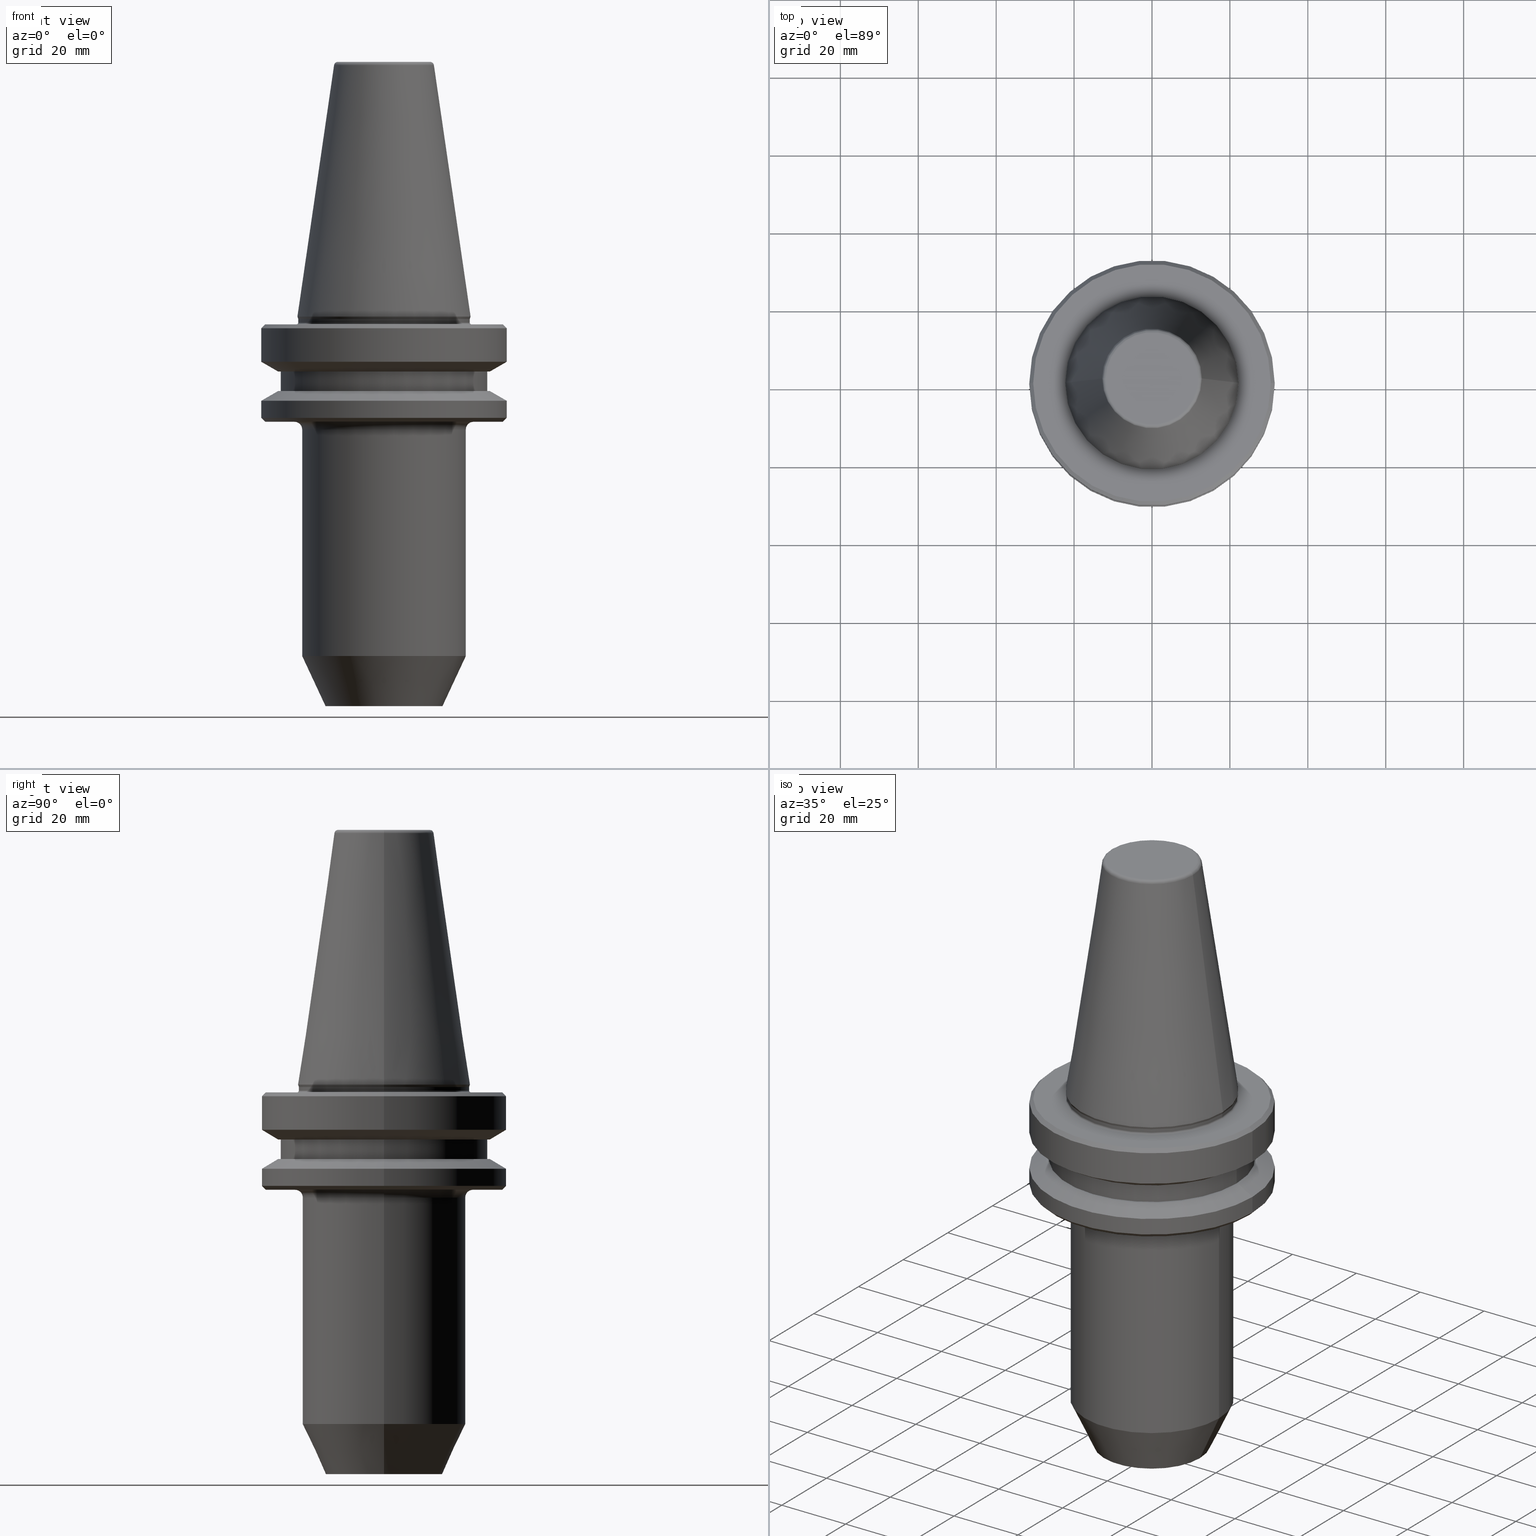
[diagram: canonical four-view strip — front | top / right | iso, engineering-drawing reading convention]
A machine part, canonical four-view strip (front | top / right | iso — engineering-drawing reading convention). The complete STEP part file that produces these views, byte-faithful:
ISO-10303-21;
HEADER;
FILE_DESCRIPTION (( 'STEP AP203' ),
    '1' );
FILE_NAME ('BT40 WE12 100 AD-6.3G15000 SL.STEP',
    '2019-05-22T08:24:44',
    ( '' ),
    ( '' ),
    'SwSTEP 2.0',
    'SolidWorks 2014',
    '' );
FILE_SCHEMA (( 'CONFIG_CONTROL_DESIGN' ));
ENDSEC;

DATA;
#1 = DIRECTION ( 'NONE',  ( 1.000000000000000000, 0.0000000000000000000, 0.0000000000000000000 ) ) ;
#2 = ORIENTED_EDGE ( 'NONE', *, *, #934, .F. ) ;
#3 = AXIS2_PLACEMENT_3D ( 'NONE', #629, #1000, #697 ) ;
#4 = AXIS2_PLACEMENT_3D ( 'NONE', #287, #222, #459 ) ;
#5 = FACE_BOUND ( 'NONE', #813, .T. ) ;
#6 = FACE_OUTER_BOUND ( 'NONE', #975, .T. ) ;
#7 = ADVANCED_FACE ( 'NONE', ( #392 ), #40, .T. ) ;
#8 = EDGE_CURVE ( 'NONE', #612, #24, #244, .T. ) ;
#9 = TOROIDAL_SURFACE ( 'NONE', #510, 22.99999999999835500, 2.000000000000001800 ) ;
#10 = ORIENTED_EDGE ( 'NONE', *, *, #609, .F. ) ;
#11 = TOROIDAL_SURFACE ( 'NONE', #817, 22.40000000000019800, 0.3999999999999907000 ) ;
#12 = CARTESIAN_POINT ( 'NONE',  ( 0.0000000000000000000, 0.0000000000000000000, 65.40000000000067400 ) ) ;
#13 = ORIENTED_EDGE ( 'NONE', *, *, #350, .F. ) ;
#14 = DIRECTION ( 'NONE',  ( 1.000000000000000000, 0.0000000000000000000, 0.0000000000000000000 ) ) ;
#15 = CARTESIAN_POINT ( 'NONE',  ( -22.00000000000024200, 2.694222958124206400E-015, 85.38375981632327700 ) ) ;
#16 = CC_DESIGN_PERSON_AND_ORGANIZATION_ASSIGNMENT ( #701, #969, ( #360 ) ) ;
#17 = ORIENTED_EDGE ( 'NONE', *, *, #796, .F. ) ;
#18 = EDGE_CURVE ( 'NONE', #111, #88, #907, .T. ) ;
#19 = PERSON_AND_ORGANIZATION ( #164, #112 ) ;
#20 = EDGE_CURVE ( 'NONE', #88, #111, #463, .T. ) ;
#21 = LINE ( 'NONE', #526, #644 ) ;
#22 = EDGE_LOOP ( 'NONE', ( #29, #104, #692, #323 ) ) ;
#23 = DIRECTION ( 'NONE',  ( -0.0000000000000000000, -0.0000000000000000000, 1.000000000000000000 ) ) ;
#24 = VERTEX_POINT ( 'NONE', #265 ) ;
#25 = DIRECTION ( 'NONE',  ( -0.0000000000000000000, -0.0000000000000000000, 1.000000000000000000 ) ) ;
#26 = EDGE_CURVE ( 'NONE', #930, #542, #272, .T. ) ;
#27 = DIRECTION ( 'NONE',  ( -0.0000000000000000000, -0.0000000000000000000, 1.000000000000000000 ) ) ;
#28 = EDGE_LOOP ( 'NONE', ( #229, #649, #162, #589 ) ) ;
#29 = ORIENTED_EDGE ( 'NONE', *, *, #973, .F. ) ;
#30 = EDGE_LOOP ( 'NONE', ( #85, #329, #705, #344 ) ) ;
#31 = DIRECTION ( 'NONE',  ( 0.8660254037844383700, 0.0000000000000000000, 0.5000000000000003300 ) ) ;
#32 = APPROVAL_ROLE ( '' ) ;
#33 = EDGE_CURVE ( 'NONE', #429, #457, #57, .T. ) ;
#34 = DIRECTION ( 'NONE',  ( 1.000000000000000000, 0.0000000000000000000, 0.0000000000000000000 ) ) ;
#35 = CARTESIAN_POINT ( 'NONE',  ( 0.0000000000000000000, 0.0000000000000000000, -1.499999999999834800 ) ) ;
#36 = DATE_TIME_ROLE ( 'classification_date' ) ;
#37 = FACE_OUTER_BOUND ( 'NONE', #1025, .T. ) ;
#38 = DIRECTION ( 'NONE',  ( -0.8660254037844383700, 1.060575238724906500E-016, 0.5000000000000003300 ) ) ;
#39 = VECTOR ( 'NONE', #437, 1000.000000000000000 ) ;
#40 = CONICAL_SURFACE ( 'NONE', #3, 30.50000000000030600, 0.7853981633974482800 ) ;
#41 = FACE_OUTER_BOUND ( 'NONE', #399, .T. ) ;
#42 = CARTESIAN_POINT ( 'NONE',  ( 0.0000000000000000000, 0.0000000000000000000, -0.5519051543288189300 ) ) ;
#43 = DIRECTION ( 'NONE',  ( -0.0000000000000000000, -0.0000000000000000000, 1.000000000000000000 ) ) ;
#44 = DIRECTION ( 'NONE',  ( -0.0000000000000000000, -0.0000000000000000000, 1.000000000000000000 ) ) ;
#45 = AXIS2_PLACEMENT_3D ( 'NONE', #943, #687, #391 ) ;
#46 = DIRECTION ( 'NONE',  ( 1.000000000000000000, 0.0000000000000000000, 0.0000000000000000000 ) ) ;
#47 = COORDINATED_UNIVERSAL_TIME_OFFSET ( 5, 30, .AHEAD. ) ;
#48 = VECTOR ( 'NONE', #735, 999.9999999999998900 ) ;
#49 = AXIS2_PLACEMENT_3D ( 'NONE', #645, #184, #414 ) ;
#50 = DIRECTION ( 'NONE',  ( 0.0000000000000000000, 0.0000000000000000000, -1.000000000000000000 ) ) ;
#51 = DIRECTION ( 'NONE',  ( -0.0000000000000000000, -0.0000000000000000000, 1.000000000000000000 ) ) ;
#52 = CARTESIAN_POINT ( 'NONE',  ( 0.0000000000000000000, 0.0000000000000000000, 65.40000000000067400 ) ) ;
#53 = APPLICATION_CONTEXT ( 'configuration controlled 3d designs of mechanical parts and assemblies' ) ;
#54 = CIRCLE ( 'NONE', #498, 27.16962701892200400 ) ;
#55 = DIRECTION ( 'NONE',  ( 1.000000000000000000, 0.0000000000000000000, 0.0000000000000000000 ) ) ;
#56 = FACE_OUTER_BOUND ( 'NONE', #28, .T. ) ;
#57 = CIRCLE ( 'NONE', #640, 31.50000000000041600 ) ;
#58 = VECTOR ( 'NONE', #888, 999.9999999999998900 ) ;
#59 = ORIENTED_EDGE ( 'NONE', *, *, #8, .F. ) ;
#60 = DIRECTION ( 'NONE',  ( -0.0000000000000000000, -0.0000000000000000000, 1.000000000000000000 ) ) ;
#61 = ORIENTED_EDGE ( 'NONE', *, *, #20, .T. ) ;
#62 = EDGE_CURVE ( 'NONE', #412, #1039, #879, .T. ) ;
#63 = VERTEX_POINT ( 'NONE', #732 ) ;
#64 = CARTESIAN_POINT ( 'NONE',  ( 0.0000000000000000000, 0.0000000000000000000, 0.0000000000000000000 ) ) ;
#65 = DIRECTION ( 'NONE',  ( 0.0000000000000000000, 0.0000000000000000000, -1.000000000000000000 ) ) ;
#66 = LINE ( 'NONE', #771, #573 ) ;
#67 = ORIENTED_EDGE ( 'NONE', *, *, #565, .F. ) ;
#68 = CARTESIAN_POINT ( 'NONE',  ( 22.22500000000005100, 0.0000000000000000000, 0.0000000000000000000 ) ) ;
#69 = AXIS2_PLACEMENT_3D ( 'NONE', #1004, #993, #655 ) ;
#70 = ORIENTED_EDGE ( 'NONE', *, *, #26, .T. ) ;
#71 = PLANE ( 'NONE',  #703 ) ;
#72 = CARTESIAN_POINT ( 'NONE',  ( -30.50000000000030600, 3.796405077356839300E-015, -27.00000000010338400 ) ) ;
#73 = TOROIDAL_SURFACE ( 'NONE', #136, 22.40000000000019800, 0.3999999999999907000 ) ;
#74 = AXIS2_PLACEMENT_3D ( 'NONE', #92, #43, #749 ) ;
#75 = CIRCLE ( 'NONE', #689, 12.81220206925748400 ) ;
#76 = EDGE_LOOP ( 'NONE', ( #224, #639 ) ) ;
#77 = VECTOR ( 'NONE', #741, 1000.000000000000000 ) ;
#78 = DIRECTION ( 'NONE',  ( 0.0000000000000000000, -1.000000000000000000, 0.0000000000000000000 ) ) ;
#79 = ORIENTED_EDGE ( 'NONE', *, *, #865, .F. ) ;
#80 = ORIENTED_EDGE ( 'NONE', *, *, #566, .T. ) ;
#81 = AXIS2_PLACEMENT_3D ( 'NONE', #123, #1042, #216 ) ;
#82 = EDGE_CURVE ( 'NONE', #441, #90, #691, .T. ) ;
#83 = AXIS2_PLACEMENT_3D ( 'NONE', #620, #626, #724 ) ;
#84 = CARTESIAN_POINT ( 'NONE',  ( 0.0000000000000000000, 0.0000000000000000000, 64.40000000000067400 ) ) ;
#85 = ORIENTED_EDGE ( 'NONE', *, *, #983, .T. ) ;
#86 = DIRECTION ( 'NONE',  ( -0.0000000000000000000, -0.0000000000000000000, 1.000000000000000000 ) ) ;
#87 = LINE ( 'NONE', #836, #916 ) ;
#88 = VERTEX_POINT ( 'NONE', #972 ) ;
#89 = AXIS2_PLACEMENT_3D ( 'NONE', #449, #86, #175 ) ;
#90 = VERTEX_POINT ( 'NONE', #902 ) ;
#91 = ORIENTED_EDGE ( 'NONE', *, *, #914, .F. ) ;
#92 = CARTESIAN_POINT ( 'NONE',  ( 0.0000000000000000000, 0.0000000000000000000, -0.5519051543288189300 ) ) ;
#93 = EDGE_CURVE ( 'NONE', #301, #797, #442, .T. ) ;
#94 = ORIENTED_EDGE ( 'NONE', *, *, #263, .F. ) ;
#95 = DIRECTION ( 'NONE',  ( 1.000000000000000000, 0.0000000000000000000, 0.0000000000000000000 ) ) ;
#96 = CARTESIAN_POINT ( 'NONE',  ( 0.0000000000000000000, 0.0000000000000000000, -2.999999999999669600 ) ) ;
#97 = CARTESIAN_POINT ( 'NONE',  ( 0.0000000000000000000, 0.0000000000000000000, 85.38375981632327700 ) ) ;
#98 = DATE_AND_TIME ( #315, #530 ) ;
#99 = AXIS2_PLACEMENT_3D ( 'NONE', #571, #398, #126 ) ;
#100 = CARTESIAN_POINT ( 'NONE',  ( 31.50000000000041600, 3.857637417314213200E-015, -21.60014200642024200 ) ) ;
#101 = CIRCLE ( 'NONE', #151, 26.50000000000041200 ) ;
#102 = LINE ( 'NONE', #485, #515 ) ;
#103 = APPROVAL_ROLE ( '' ) ;
#104 = ORIENTED_EDGE ( 'NONE', *, *, #549, .T. ) ;
#105 = ORIENTED_EDGE ( 'NONE', *, *, #8, .T. ) ;
#106 = CARTESIAN_POINT ( 'NONE',  ( 0.0000000000000000000, 0.0000000000000000000, -26.00000000010327400 ) ) ;
#107 = CARTESIAN_POINT ( 'NONE',  ( 0.0000000000000000000, 0.0000000000000000000, -1.499999999999834800 ) ) ;
#108 = CARTESIAN_POINT ( 'NONE',  ( 0.0000000000000000000, 0.0000000000000000000, -14.09999999999955700 ) ) ;
#109 = DIRECTION ( 'NONE',  ( -0.0000000000000000000, -0.0000000000000000000, 1.000000000000000000 ) ) ;
#110 = DIRECTION ( 'NONE',  ( 0.0000000000000000000, 0.0000000000000000000, 1.000000000000000000 ) ) ;
#111 = VERTEX_POINT ( 'NONE', #991 ) ;
#112 = ORGANIZATION ( 'UNSPECIFIED', 'UNSPECIFIED', '' ) ;
#113 = CIRCLE ( 'NONE', #723, 26.50000000000041200 ) ;
#114 = ORIENTED_EDGE ( 'NONE', *, *, #306, .T. ) ;
#115 = ORIENTED_EDGE ( 'NONE', *, *, #432, .F. ) ;
#116 = CARTESIAN_POINT ( 'NONE',  ( -22.02412295168592500, 2.697177167680992600E-015, -0.5519051543288189300 ) ) ;
#117 = CARTESIAN_POINT ( 'NONE',  ( -27.16962701892200400, 0.0000000000000000000, -19.10000000010314400 ) ) ;
#118 = CARTESIAN_POINT ( 'NONE',  ( 0.0000000000000000000, 0.0000000000000000000, 64.54430818888890500 ) ) ;
#119 = EDGE_CURVE ( 'NONE', #249, #706, #660, .T. ) ;
#120 = CARTESIAN_POINT ( 'NONE',  ( 0.0000000000000000000, 0.0000000000000000000, -2.999999999999669600 ) ) ;
#121 = EDGE_LOOP ( 'NONE', ( #233, #998, #911, #679 ) ) ;
#122 = ORIENTED_EDGE ( 'NONE', *, *, #62, .F. ) ;
#123 = CARTESIAN_POINT ( 'NONE',  ( 0.0000000000000000000, 30.50000000000019200, -1.999999999999779700 ) ) ;
#124 = CARTESIAN_POINT ( 'NONE',  ( 0.0000000000000000000, 0.0000000000000000000, -100.0000000001197800 ) ) ;
#125 = AXIS2_PLACEMENT_3D ( 'NONE', #108, #726, #516 ) ;
#126 = DIRECTION ( 'NONE',  ( 1.000000000000000000, 0.0000000000000000000, 0.0000000000000000000 ) ) ;
#127 = PERSON_AND_ORGANIZATION ( #164, #112 ) ;
#128 = FACE_OUTER_BOUND ( 'NONE', #795, .T. ) ;
#129 = DIRECTION ( 'NONE',  ( -0.0000000000000000000, -0.0000000000000000000, 1.000000000000000000 ) ) ;
#130 = TOROIDAL_SURFACE ( 'NONE', #816, 22.50000000000018500, 0.4999999999999449300 ) ;
#131 = EDGE_CURVE ( 'NONE', #507, #330, #214, .T. ) ;
#132 = CARTESIAN_POINT ( 'NONE',  ( -31.50000000000041600, 3.857637417314213200E-015, 85.38375981632327700 ) ) ;
#133 = EDGE_LOOP ( 'NONE', ( #1038, #308, #70, #831 ) ) ;
#134 = CARTESIAN_POINT ( 'NONE',  ( 22.99999999999835500, 0.0000000000000000000, -27.00000000010338400 ) ) ;
#135 = ADVANCED_FACE ( 'NONE', ( #851 ), #1036, .T. ) ;
#136 = AXIS2_PLACEMENT_3D ( 'NONE', #557, #867, #509 ) ;
#137 = DIRECTION ( 'NONE',  ( 1.000000000000000000, 0.0000000000000000000, 0.0000000000000000000 ) ) ;
#138 = VECTOR ( 'NONE', #312, 1000.000000000000000 ) ;
#139 = DIRECTION ( 'NONE',  ( 1.000000000000000000, 0.0000000000000000000, 0.0000000000000000000 ) ) ;
#140 = LINE ( 'NONE', #15, #410 ) ;
#141 = EDGE_LOOP ( 'NONE', ( #143, #253, #349, #61 ) ) ;
#142 = CARTESIAN_POINT ( 'NONE',  ( 0.0000000000000000000, 0.0000000000000000000, -2.999999999999669600 ) ) ;
#143 = ORIENTED_EDGE ( 'NONE', *, *, #549, .F. ) ;
#144 = EDGE_CURVE ( 'NONE', #388, #542, #194, .T. ) ;
#145 = DIRECTION ( 'NONE',  ( 1.000000000000000000, 0.0000000000000000000, 0.0000000000000000000 ) ) ;
#146 = DIRECTION ( 'NONE',  ( 1.000000000000000000, 0.0000000000000000000, 0.0000000000000000000 ) ) ;
#147 = ORIENTED_EDGE ( 'NONE', *, *, #334, .F. ) ;
#148 = PLANE ( 'NONE',  #548 ) ;
#149 = ADVANCED_FACE ( 'NONE', ( #634 ), #9, .F. ) ;
#150 = DIRECTION ( 'NONE',  ( -0.0000000000000000000, -0.0000000000000000000, 1.000000000000000000 ) ) ;
#151 = AXIS2_PLACEMENT_3D ( 'NONE', #874, #129, #418 ) ;
#152 = DIRECTION ( 'NONE',  ( 1.000000000000000000, 0.0000000000000000000, 0.0000000000000000000 ) ) ;
#153 = PERSON_AND_ORGANIZATION ( #164, #112 ) ;
#154 = ORIENTED_EDGE ( 'NONE', *, *, #263, .T. ) ;
#155 = FACE_OUTER_BOUND ( 'NONE', #788, .T. ) ;
#156 = VECTOR ( 'NONE', #25, 1000.000000000000000 ) ;
#157 = ORIENTED_EDGE ( 'NONE', *, *, #934, .T. ) ;
#158 = DIRECTION ( 'NONE',  ( -1.000000000000000000, 0.0000000000000000000, 0.0000000000000000000 ) ) ;
#159 = ORIENTED_EDGE ( 'NONE', *, *, #973, .T. ) ;
#160 = DIRECTION ( 'NONE',  ( 1.000000000000000000, 0.0000000000000000000, 0.0000000000000000000 ) ) ;
#161 = CARTESIAN_POINT ( 'NONE',  ( -20.99999999999835200, 2.571758278209240100E-015, -87.13295847706282900 ) ) ;
#162 = ORIENTED_EDGE ( 'NONE', *, *, #364, .T. ) ;
#163 = ORIENTED_EDGE ( 'NONE', *, *, #334, .T. ) ;
#164 = PERSON ( 'UNSPECIFIED', 'UNSPECIFIED', 'UNSPECIFIED', ('UNSPECIFIED'), ('UNSPECIFIED'), ('UNSPECIFIED') ) ;
#165 = DIRECTION ( 'NONE',  ( 1.000000000000000000, 0.0000000000000000000, 0.0000000000000000000 ) ) ;
#166 = ADVANCED_FACE ( 'NONE', ( #604 ), #1008, .T. ) ;
#167 = CIRCLE ( 'NONE', #742, 31.50000000000041600 ) ;
#168 = DIRECTION ( 'NONE',  ( 1.000000000000000000, 0.0000000000000000000, 0.0000000000000000000 ) ) ;
#169 = EDGE_LOOP ( 'NONE', ( #964, #196 ) ) ;
#170 = ORIENTED_EDGE ( 'NONE', *, *, #255, .T. ) ;
#171 = EDGE_CURVE ( 'NONE', #24, #612, #167, .T. ) ;
#172 = CARTESIAN_POINT ( 'NONE',  ( 0.0000000000000000000, 0.0000000000000000000, -27.00000000010338400 ) ) ;
#173 = CALENDAR_DATE ( 2019, 22, 5 ) ;
#174 = CARTESIAN_POINT ( 'NONE',  ( -31.50000000000041600, 0.0000000000000000000, -21.60014200642024200 ) ) ;
#175 = DIRECTION ( 'NONE',  ( 1.000000000000000000, 0.0000000000000000000, 0.0000000000000000000 ) ) ;
#176 = CARTESIAN_POINT ( 'NONE',  ( 0.0000000000000000000, 0.0000000000000000000, 64.40000000000067400 ) ) ;
#177 = VECTOR ( 'NONE', #861, 1000.000000000000000 ) ;
#178 = FACE_OUTER_BOUND ( 'NONE', #491, .T. ) ;
#179 = DIRECTION ( 'NONE',  ( -0.0000000000000000000, -0.0000000000000000000, 1.000000000000000000 ) ) ;
#180 = EDGE_LOOP ( 'NONE', ( #1012, #1010, #445, #815 ) ) ;
#181 = CARTESIAN_POINT ( 'NONE',  ( 30.50000000000030600, 0.0000000000000000000, -27.00000000010338400 ) ) ;
#182 = CARTESIAN_POINT ( 'NONE',  ( 0.0000000000000000000, 0.0000000000000000000, -0.6887132116593086600 ) ) ;
#183 = ORIENTED_EDGE ( 'NONE', *, *, #777, .F. ) ;
#184 = DIRECTION ( 'NONE',  ( -0.0000000000000000000, -0.0000000000000000000, 1.000000000000000000 ) ) ;
#185 = AXIS2_PLACEMENT_3D ( 'NONE', #124, #44, #382 ) ;
#186 = DIRECTION ( 'NONE',  ( -0.0000000000000000000, -0.0000000000000000000, 1.000000000000000000 ) ) ;
#187 = DIRECTION ( 'NONE',  ( -0.0000000000000000000, -0.0000000000000000000, 1.000000000000000000 ) ) ;
#188 = DIRECTION ( 'NONE',  ( -0.0000000000000000000, -0.0000000000000000000, 1.000000000000000000 ) ) ;
#189 = AXIS2_PLACEMENT_3D ( 'NONE', #758, #1033, #46 ) ;
#190 = DIRECTION ( 'NONE',  ( -0.0000000000000000000, -0.0000000000000000000, 1.000000000000000000 ) ) ;
#191 = CIRCLE ( 'NONE', #208, 31.50000000000041600 ) ;
#192 = CIRCLE ( 'NONE', #481, 30.50000000000030600 ) ;
#193 = APPROVAL_ROLE ( '' ) ;
#194 = CIRCLE ( 'NONE', #959, 2.000000000000001800 ) ;
#195 = ORIENTED_EDGE ( 'NONE', *, *, #801, .T. ) ;
#196 = ORIENTED_EDGE ( 'NONE', *, *, #82, .F. ) ;
#197 = ORIENTED_EDGE ( 'NONE', *, *, #1005, .T. ) ;
#198 = AXIS2_PLACEMENT_3D ( 'NONE', #358, #468, #139 ) ;
#199 = DATE_AND_TIME ( #421, #642 ) ;
#200 = LINE ( 'NONE', #650, #837 ) ;
#201 = ORIENTED_EDGE ( 'NONE', *, *, #713, .F. ) ;
#202 = CARTESIAN_POINT ( 'NONE',  ( -22.50000000000018500, 2.755455298081567700E-015, -1.999999999999779700 ) ) ;
#203 = ORIENTED_EDGE ( 'NONE', *, *, #280, .T. ) ;
#204 = ORIENTED_EDGE ( 'NONE', *, *, #435, .T. ) ;
#205 = ORIENTED_EDGE ( 'NONE', *, *, #621, .F. ) ;
#206 = ORIENTED_EDGE ( 'NONE', *, *, #786, .F. ) ;
#207 = DIRECTION ( 'NONE',  ( 1.000000000000000000, 0.0000000000000000000, 0.0000000000000000000 ) ) ;
#208 = AXIS2_PLACEMENT_3D ( 'NONE', #106, #355, #165 ) ;
#209 = AXIS2_PLACEMENT_3D ( 'NONE', #247, #633, #145 ) ;
#210 = CARTESIAN_POINT ( 'NONE',  ( 0.0000000000000000000, 0.0000000000000000000, 85.38375981632327700 ) ) ;
#211 = VECTOR ( 'NONE', #979, 1000.000000000000000 ) ;
#212 = VECTOR ( 'NONE', #31, 1000.000000000000100 ) ;
#213 = ORIENTED_EDGE ( 'NONE', *, *, #171, .T. ) ;
#214 = CIRCLE ( 'NONE', #230, 26.50000000000041200 ) ;
#215 = ORIENTED_EDGE ( 'NONE', *, *, #707, .F. ) ;
#216 = DIRECTION ( 'NONE',  ( -1.000000000000000000, 0.0000000000000000000, -0.0000000000000000000 ) ) ;
#217 = FACE_OUTER_BOUND ( 'NONE', #607, .T. ) ;
#218 = CARTESIAN_POINT ( 'NONE',  ( 0.0000000000000000000, 0.0000000000000000000, -1.499999999999834800 ) ) ;
#219 = DATE_TIME_ROLE ( 'creation_date' ) ;
#220 = AXIS2_PLACEMENT_3D ( 'NONE', #666, #50, #486 ) ;
#221 = ORIENTED_EDGE ( 'NONE', *, *, #621, .T. ) ;
#222 = DIRECTION ( 'NONE',  ( 1.224646799147353200E-016, 1.000000000000000000, 0.0000000000000000000 ) ) ;
#223 = AXIS2_PLACEMENT_3D ( 'NONE', #172, #663, #665 ) ;
#224 = ORIENTED_EDGE ( 'NONE', *, *, #606, .T. ) ;
#225 = DIRECTION ( 'NONE',  ( 0.0000000000000000000, -0.0000000000000000000, 1.000000000000000000 ) ) ;
#226 = CC_DESIGN_PERSON_AND_ORGANIZATION_ASSIGNMENT ( #584, #662, ( #893 ) ) ;
#227 = EDGE_CURVE ( 'NONE', #721, #478, #378, .T. ) ;
#228 = APPROVAL_DATE_TIME ( #450, #651 ) ;
#229 = ORIENTED_EDGE ( 'NONE', *, *, #709, .F. ) ;
#230 = AXIS2_PLACEMENT_3D ( 'NONE', #708, #51, #34 ) ;
#231 = FACE_OUTER_BOUND ( 'NONE', #856, .T. ) ;
#232 = ADVANCED_FACE ( 'NONE', ( #822 ), #794, .T. ) ;
#233 = ORIENTED_EDGE ( 'NONE', *, *, #566, .F. ) ;
#234 = VERTEX_POINT ( 'NONE', #497 ) ;
#235 = DIRECTION ( 'NONE',  ( -0.0000000000000000000, -0.0000000000000000000, 1.000000000000000000 ) ) ;
#236 = APPROVAL ( #596, 'UNSPECIFIED' ) ;
#237 = ORIENTED_EDGE ( 'NONE', *, *, #736, .T. ) ;
#238 = ORIENTED_EDGE ( 'NONE', *, *, #227, .T. ) ;
#239 = AXIS2_PLACEMENT_3D ( 'NONE', #210, #1044, #362 ) ;
#240 = ADVANCED_FACE ( 'NONE', ( #356 ), #328, .T. ) ;
#241 = VECTOR ( 'NONE', #909, 1000.000000000000000 ) ;
#242 = FACE_OUTER_BOUND ( 'NONE', #525, .T. ) ;
#243 = CARTESIAN_POINT ( 'NONE',  ( -30.50000000000019200, 0.0000000000000000000, -1.999999999999779700 ) ) ;
#244 = CIRCLE ( 'NONE', #209, 31.50000000000041600 ) ;
#245 = ORIENTED_EDGE ( 'NONE', *, *, #756, .T. ) ;
#246 = VECTOR ( 'NONE', #1023, 1000.000000000000000 ) ;
#247 = CARTESIAN_POINT ( 'NONE',  ( 0.0000000000000000000, 0.0000000000000000000, -21.60014200642024200 ) ) ;
#248 = EDGE_CURVE ( 'NONE', #563, #930, #540, .T. ) ;
#249 = VERTEX_POINT ( 'NONE', #68 ) ;
#250 = EDGE_CURVE ( 'NONE', #301, #528, #140, .T. ) ;
#251 = DIRECTION ( 'NONE',  ( 0.0000000000000000000, 0.0000000000000000000, -1.000000000000000000 ) ) ;
#252 = AXIS2_PLACEMENT_3D ( 'NONE', #641, #700, #985 ) ;
#253 = ORIENTED_EDGE ( 'NONE', *, *, #227, .F. ) ;
#254 = ADVANCED_FACE ( 'NONE', ( #984 ), #304, .T. ) ;
#255 = EDGE_CURVE ( 'NONE', #982, #866, #523, .T. ) ;
#256 = APPROVAL_PERSON_ORGANIZATION ( #471, #651, #193 ) ;
#257 = EDGE_CURVE ( 'NONE', #950, #63, #775, .T. ) ;
#258 = DIRECTION ( 'NONE',  ( 0.4226182617406976100, 0.0000000000000000000, 0.9063077870366508200 ) ) ;
#259 = CIRCLE ( 'NONE', #1014, 22.02412295168592500 ) ;
#260 = PERSON_AND_ORGANIZATION_ROLE ( 'design_supplier' ) ;
#261 = DIRECTION ( 'NONE',  ( 1.000000000000000000, 0.0000000000000000000, 0.0000000000000000000 ) ) ;
#262 = CARTESIAN_POINT ( 'NONE',  ( 27.16962701892200400, 3.592478546794620500E-015, -19.10000000010314400 ) ) ;
#263 = EDGE_CURVE ( 'NONE', #330, #507, #113, .T. ) ;
#264 = AXIS2_PLACEMENT_3D ( 'NONE', #370, #591, #850 ) ;
#265 = CARTESIAN_POINT ( 'NONE',  ( 31.50000000000041600, 0.0000000000000000000, -21.60014200642024200 ) ) ;
#266 = CARTESIAN_POINT ( 'NONE',  ( 0.0000000000000000000, 0.0000000000000000000, -14.09999999999955700 ) ) ;
#267 = CARTESIAN_POINT ( 'NONE',  ( 14.99999999999857000, 0.0000000000000000000, -100.0000000001197800 ) ) ;
#268 = FACE_OUTER_BOUND ( 'NONE', #590, .T. ) ;
#269 = AXIS2_PLACEMENT_3D ( 'NONE', #52, #953, #420 ) ;
#270 = APPLICATION_PROTOCOL_DEFINITION ( 'international standard', 'config_control_design', 1994, #53 ) ;
#271 = TOROIDAL_SURFACE ( 'NONE', #684, 11.82266927716824200, 1.000000000000033300 ) ;
#272 = CIRCLE ( 'NONE', #546, 20.99999999999835200 ) ;
#273 = LINE ( 'NONE', #799, #246 ) ;
#274 = EDGE_LOOP ( 'NONE', ( #482, #285, #561, #396 ) ) ;
#275 = DIRECTION ( 'NONE',  ( 1.000000000000000000, 0.0000000000000000000, 0.0000000000000000000 ) ) ;
#276 = CARTESIAN_POINT ( 'NONE',  ( 0.0000000000000000000, 0.0000000000000000000, 0.0000000000000000000 ) ) ;
#277 = CC_DESIGN_PERSON_AND_ORGANIZATION_ASSIGNMENT ( #366, #260, ( #893 ) ) ;
#278 = DIRECTION ( 'NONE',  ( 0.0000000000000000000, 0.0000000000000000000, -1.000000000000000000 ) ) ;
#279 = CARTESIAN_POINT ( 'NONE',  ( -30.50000000000030600, 3.735172737399464600E-015, -27.00000000010338400 ) ) ;
#280 = EDGE_CURVE ( 'NONE', #528, #899, #751, .T. ) ;
#281 = DIRECTION ( 'NONE',  ( -1.000000000000000000, 1.224646799147353500E-016, 0.0000000000000000000 ) ) ;
#282 = CARTESIAN_POINT ( 'NONE',  ( 0.0000000000000000000, 0.0000000000000000000, -0.5519051543288189300 ) ) ;
#283 = DIRECTION ( 'NONE',  ( 0.7071067811865867600, 8.659560562355413600E-017, -0.7071067811865081600 ) ) ;
#284 = FACE_OUTER_BOUND ( 'NONE', #121, .T. ) ;
#285 = ORIENTED_EDGE ( 'NONE', *, *, #292, .F. ) ;
#286 = CARTESIAN_POINT ( 'NONE',  ( 22.00000000000024200, 0.0000000000000000000, -0.6887132116593086600 ) ) ;
#287 = CARTESIAN_POINT ( 'NONE',  ( -22.50000000000018500, 2.755455298081567700E-015, -1.499999999999834800 ) ) ;
#288 = AXIS2_PLACEMENT_3D ( 'NONE', #413, #333, #275 ) ;
#289 = ORIENTED_EDGE ( 'NONE', *, *, #487, .T. ) ;
#290 =( NAMED_UNIT ( * ) PLANE_ANGLE_UNIT ( ) SI_UNIT ( $, .RADIAN. ) );
#291 = DIRECTION ( 'NONE',  ( -0.0000000000000000000, -0.0000000000000000000, 1.000000000000000000 ) ) ;
#292 = EDGE_CURVE ( 'NONE', #388, #563, #962, .T. ) ;
#293 = DIRECTION ( 'NONE',  ( 1.000000000000000000, 0.0000000000000000000, 0.0000000000000000000 ) ) ;
#294 = TOROIDAL_SURFACE ( 'NONE', #49, 22.99999999999835500, 2.000000000000001800 ) ;
#295 = CARTESIAN_POINT ( 'NONE',  ( 0.0000000000000000000, 0.0000000000000000000, -100.0000000001197800 ) ) ;
#296 = ORIENTED_EDGE ( 'NONE', *, *, #875, .T. ) ;
#297 = CIRCLE ( 'NONE', #562, 20.99999999999835200 ) ;
#298 = EDGE_LOOP ( 'NONE', ( #503, #154, #114, #857 ) ) ;
#299 = AXIS2_PLACEMENT_3D ( 'NONE', #107, #727, #536 ) ;
#300 = CARTESIAN_POINT ( 'NONE',  ( 0.0000000000000000000, 0.0000000000000000000, -27.00000000010338400 ) ) ;
#301 = VERTEX_POINT ( 'NONE', #682 ) ;
#302 = CARTESIAN_POINT ( 'NONE',  ( 0.0000000000000000000, 0.0000000000000000000, -27.00000000010338400 ) ) ;
#303 = PRODUCT_RELATED_PRODUCT_CATEGORY ( 'detail', '', ( #360 ) ) ;
#304 = CONICAL_SURFACE ( 'NONE', #681, 27.16962701892333600, 1.047197551196597400 ) ;
#305 = DIRECTION ( 'NONE',  ( 1.000000000000000000, 0.0000000000000000000, 0.0000000000000000000 ) ) ;
#306 = EDGE_CURVE ( 'NONE', #507, #383, #728, .T. ) ;
#307 = DIRECTION ( 'NONE',  ( 1.000000000000000000, 0.0000000000000000000, 0.0000000000000000000 ) ) ;
#308 = ORIENTED_EDGE ( 'NONE', *, *, #248, .T. ) ;
#309 = ORIENTED_EDGE ( 'NONE', *, *, #306, .F. ) ;
#310 = ORIENTED_EDGE ( 'NONE', *, *, #386, .T. ) ;
#311 = ORIENTED_EDGE ( 'NONE', *, *, #501, .T. ) ;
#312 = DIRECTION ( 'NONE',  ( -0.0000000000000000000, -0.0000000000000000000, 1.000000000000000000 ) ) ;
#313 = EDGE_LOOP ( 'NONE', ( #696, #495, #204, #59 ) ) ;
#314 = DIRECTION ( 'NONE',  ( -0.0000000000000000000, -0.0000000000000000000, 1.000000000000000000 ) ) ;
#315 = CALENDAR_DATE ( 2019, 22, 5 ) ;
#316 = PLANE ( 'NONE',  #288 ) ;
#317 = DIRECTION ( 'NONE',  ( -0.0000000000000000000, -0.0000000000000000000, 1.000000000000000000 ) ) ;
#318 = AXIS2_PLACEMENT_3D ( 'NONE', #638, #568, #544 ) ;
#319 = FACE_OUTER_BOUND ( 'NONE', #778, .T. ) ;
#320 = FACE_OUTER_BOUND ( 'NONE', #76, .T. ) ;
#321 = ADVANCED_FACE ( 'NONE', ( #284 ), #475, .T. ) ;
#322 = EDGE_LOOP ( 'NONE', ( #769, #94 ) ) ;
#323 = ORIENTED_EDGE ( 'NONE', *, *, #770, .F. ) ;
#324 = DIRECTION ( 'NONE',  ( -0.0000000000000000000, -0.0000000000000000000, 1.000000000000000000 ) ) ;
#325 = AXIS2_PLACEMENT_3D ( 'NONE', #1007, #810, #363 ) ;
#326 = VECTOR ( 'NONE', #627, 1000.000000000000100 ) ;
#327 = APPLICATION_CONTEXT ( 'configuration controlled 3d designs of mechanical parts and assemblies' ) ;
#328 = CONICAL_SURFACE ( 'NONE', #915, 27.16962701892333600, 1.047197551196597400 ) ;
#329 = ORIENTED_EDGE ( 'NONE', *, *, #752, .T. ) ;
#330 = VERTEX_POINT ( 'NONE', #424 ) ;
#331 = AXIS2_PLACEMENT_3D ( 'NONE', #737, #582, #784 ) ;
#332 = ORIENTED_EDGE ( 'NONE', *, *, #501, .F. ) ;
#333 = DIRECTION ( 'NONE',  ( 0.0000000000000000000, -0.0000000000000000000, 1.000000000000000000 ) ) ;
#334 = EDGE_CURVE ( 'NONE', #412, #899, #66, .T. ) ;
#335 = DIRECTION ( 'NONE',  ( -0.0000000000000000000, -0.0000000000000000000, 1.000000000000000000 ) ) ;
#336 = EDGE_LOOP ( 'NONE', ( #477, #245, #372, #990 ) ) ;
#337 = ORIENTED_EDGE ( 'NONE', *, *, #419, .T. ) ;
#338 = CARTESIAN_POINT ( 'NONE',  ( 0.0000000000000000000, 0.0000000000000000000, -29.00000000010338800 ) ) ;
#339 = DIRECTION ( 'NONE',  ( -0.0000000000000000000, -0.0000000000000000000, 1.000000000000000000 ) ) ;
#340 = DATE_AND_TIME ( #554, #783 ) ;
#341 = CARTESIAN_POINT ( 'NONE',  ( 31.50000000000019500, 0.0000000000000000000, -11.59985799368334900 ) ) ;
#342 = FACE_OUTER_BOUND ( 'NONE', #940, .T. ) ;
#343 = CYLINDRICAL_SURFACE ( 'NONE', #890, 22.00000000000024200 ) ;
#344 = ORIENTED_EDGE ( 'NONE', *, *, #435, .F. ) ;
#345 = ORIENTED_EDGE ( 'NONE', *, *, #348, .F. ) ;
#346 = DIRECTION ( 'NONE',  ( -1.000000000000000000, 1.224646799147353500E-016, 0.0000000000000000000 ) ) ;
#347 = AXIS2_PLACEMENT_3D ( 'NONE', #547, #179, #14 ) ;
#348 = EDGE_CURVE ( 'NONE', #462, #695, #87, .T. ) ;
#349 = ORIENTED_EDGE ( 'NONE', *, *, #770, .T. ) ;
#350 = EDGE_CURVE ( 'NONE', #826, #249, #941, .T. ) ;
#351 = DIRECTION ( 'NONE',  ( 1.000000000000000000, 0.0000000000000000000, 0.0000000000000000000 ) ) ;
#352 = AXIS2_PLACEMENT_3D ( 'NONE', #417, #833, #346 ) ;
#353 = DIRECTION ( 'NONE',  ( -1.000000000000000000, 0.0000000000000000000, 0.0000000000000000000 ) ) ;
#354 = FACE_OUTER_BOUND ( 'NONE', #1048, .T. ) ;
#355 = DIRECTION ( 'NONE',  ( -0.0000000000000000000, -0.0000000000000000000, 1.000000000000000000 ) ) ;
#356 = FACE_OUTER_BOUND ( 'NONE', #494, .T. ) ;
#357 = ORIENTED_EDGE ( 'NONE', *, *, #865, .T. ) ;
#358 = CARTESIAN_POINT ( 'NONE',  ( 0.0000000000000000000, 0.0000000000000000000, -27.00000000010338400 ) ) ;
#359 = AXIS2_PLACEMENT_3D ( 'NONE', #892, #324, #938 ) ;
#360 = PRODUCT ( 'BT40 WE12 100 AD-6.3G15000 SL', 'BT40 WE12 100 AD-6.3G15000 SL', '', ( #864 ) ) ;
#361 = EDGE_CURVE ( 'NONE', #866, #982, #259, .T. ) ;
#362 = DIRECTION ( 'NONE',  ( 1.000000000000000000, 0.0000000000000000000, 0.0000000000000000000 ) ) ;
#363 = DIRECTION ( 'NONE',  ( 1.000000000000000000, 0.0000000000000000000, 0.0000000000000000000 ) ) ;
#364 = EDGE_CURVE ( 'NONE', #826, #63, #704, .T. ) ;
#365 = DIRECTION ( 'NONE',  ( 0.3420201433261811400, 0.0000000000000000000, 0.9396926207857218000 ) ) ;
#366 = PERSON_AND_ORGANIZATION ( #164, #112 ) ;
#367 =( GEOMETRIC_REPRESENTATION_CONTEXT ( 3 ) GLOBAL_UNCERTAINTY_ASSIGNED_CONTEXT ( ( #715 ) ) GLOBAL_UNIT_ASSIGNED_CONTEXT ( ( #667, #290, #694 ) ) REPRESENTATION_CONTEXT ( 'NONE', 'WORKASPACE' ) );
#368 = LINE ( 'NONE', #855, #177 ) ;
#369 = CIRCLE ( 'NONE', #675, 14.99999999999857000 ) ;
#370 = CARTESIAN_POINT ( 'NONE',  ( 0.0000000000000000000, 0.0000000000000000000, -87.13295847706282900 ) ) ;
#371 = AXIS2_PLACEMENT_3D ( 'NONE', #407, #422, #446 ) ;
#372 = ORIENTED_EDGE ( 'NONE', *, *, #983, .F. ) ;
#373 = CARTESIAN_POINT ( 'NONE',  ( 26.50000000000041200, 0.0000000000000000000, 85.38375981632327700 ) ) ;
#374 = DIRECTION ( 'NONE',  ( -0.0000000000000000000, -0.0000000000000000000, 1.000000000000000000 ) ) ;
#375 = AXIS2_PLACEMENT_3D ( 'NONE', #918, #868, #537 ) ;
#376 = CIRCLE ( 'NONE', #781, 22.50000000000018500 ) ;
#377 = ORIENTED_EDGE ( 'NONE', *, *, #403, .T. ) ;
#378 = CIRCLE ( 'NONE', #375, 30.50000000000019200 ) ;
#379 = AXIS2_PLACEMENT_3D ( 'NONE', #12, #314, #1052 ) ;
#380 = ADVANCED_FACE ( 'NONE', ( #451 ), #863, .T. ) ;
#381 = ORIENTED_EDGE ( 'NONE', *, *, #131, .T. ) ;
#382 = DIRECTION ( 'NONE',  ( 1.000000000000000000, 0.0000000000000000000, 0.0000000000000000000 ) ) ;
#383 = VERTEX_POINT ( 'NONE', #952 ) ;
#384 = CARTESIAN_POINT ( 'NONE',  ( 0.0000000000000000000, 0.0000000000000000000, 85.38375981632327700 ) ) ;
#385 = EDGE_LOOP ( 'NONE', ( #791, #720, #357, #122 ) ) ;
#386 = EDGE_CURVE ( 'NONE', #416, #383, #891, .T. ) ;
#387 = LOCAL_TIME ( 13, 54, 44.00000000000000000, #615 ) ;
#388 = VERTEX_POINT ( 'NONE', #134 ) ;
#389 = SECURITY_CLASSIFICATION ( '', '', #1019 ) ;
#390 = CIRCLE ( 'NONE', #379, 11.82266927716835200 ) ;
#391 = DIRECTION ( 'NONE',  ( -1.000000000000000000, 0.0000000000000000000, 0.0000000000000000000 ) ) ;
#392 = FACE_OUTER_BOUND ( 'NONE', #336, .T. ) ;
#393 = CIRCLE ( 'NONE', #506, 20.99999999999835200 ) ;
#394 = VERTEX_POINT ( 'NONE', #262 ) ;
#395 = ORIENTED_EDGE ( 'NONE', *, *, #419, .F. ) ;
#396 = ORIENTED_EDGE ( 'NONE', *, *, #713, .T. ) ;
#397 = EDGE_CURVE ( 'NONE', #613, #930, #21, .T. ) ;
#398 = DIRECTION ( 'NONE',  ( -0.0000000000000000000, -0.0000000000000000000, 1.000000000000000000 ) ) ;
#399 = EDGE_LOOP ( 'NONE', ( #381, #237, #332, #309 ) ) ;
#400 = ADVANCED_FACE ( 'NONE', ( #231 ), #423, .F. ) ;
#401 = ORIENTED_EDGE ( 'NONE', *, *, #878, .T. ) ;
#402 = CARTESIAN_POINT ( 'NONE',  ( 20.99999999999835200, 0.0000000000000000000, 85.38375981632327700 ) ) ;
#403 = EDGE_CURVE ( 'NONE', #982, #249, #200, .T. ) ;
#404 = DIRECTION ( 'NONE',  ( 1.000000000000000000, 0.0000000000000000000, 0.0000000000000000000 ) ) ;
#405 = CARTESIAN_POINT ( 'NONE',  ( 22.99999999999835500, 0.0000000000000000000, -29.00000000010338800 ) ) ;
#406 = FACE_OUTER_BOUND ( 'NONE', #298, .T. ) ;
#407 = CARTESIAN_POINT ( 'NONE',  ( 0.0000000000000000000, 0.0000000000000000000, 85.38375981632327700 ) ) ;
#408 = EDGE_CURVE ( 'NONE', #234, #462, #1050, .T. ) ;
#409 = CONICAL_SURFACE ( 'NONE', #220, 31.50000000000041600, 1.047197551196599000 ) ;
#410 = VECTOR ( 'NONE', #317, 1000.000000000000000 ) ;
#411 = CARTESIAN_POINT ( 'NONE',  ( 20.99999999999835200, 0.0000000000000000000, -29.00000000010338800 ) ) ;
#412 = VERTEX_POINT ( 'NONE', #999 ) ;
#413 = CARTESIAN_POINT ( 'NONE',  ( 0.0000000000000000000, 14.99999999999857000, -100.0000000001197700 ) ) ;
#414 = DIRECTION ( 'NONE',  ( 1.000000000000000000, 0.0000000000000000000, 0.0000000000000000000 ) ) ;
#415 = CARTESIAN_POINT ( 'NONE',  ( -22.99999999999835500, 2.816687638038710400E-015, -27.00000000010338400 ) ) ;
#416 = VERTEX_POINT ( 'NONE', #658 ) ;
#417 = CARTESIAN_POINT ( 'NONE',  ( -22.99999999999835500, 2.816687638038710800E-015, -29.00000000010338800 ) ) ;
#418 = DIRECTION ( 'NONE',  ( 1.000000000000000000, 0.0000000000000000000, 0.0000000000000000000 ) ) ;
#419 = EDGE_CURVE ( 'NONE', #394, #24, #1022, .T. ) ;
#420 = DIRECTION ( 'NONE',  ( 1.000000000000000000, 0.0000000000000000000, 0.0000000000000000000 ) ) ;
#421 = CALENDAR_DATE ( 2019, 22, 5 ) ;
#422 = DIRECTION ( 'NONE',  ( -0.0000000000000000000, -0.0000000000000000000, 1.000000000000000000 ) ) ;
#423 = TOROIDAL_SURFACE ( 'NONE', #299, 22.50000000000018500, 0.4999999999999449300 ) ;
#424 = CARTESIAN_POINT ( 'NONE',  ( -26.50000000000041200, 3.245314017740536600E-015, -19.10000000010314400 ) ) ;
#425 = ORIENTED_EDGE ( 'NONE', *, *, #257, .T. ) ;
#426 = ADVANCED_FACE ( 'NONE', ( #617 ), #996, .T. ) ;
#427 = CARTESIAN_POINT ( 'NONE',  ( 0.0000000000000000000, 0.0000000000000000000, -19.10000000010314400 ) ) ;
#428 = CC_DESIGN_DATE_AND_TIME_ASSIGNMENT ( #199, #219, ( #489 ) ) ;
#429 = VERTEX_POINT ( 'NONE', #532 ) ;
#430 = CARTESIAN_POINT ( 'NONE',  ( -22.40000000000019800, 2.743208830090095500E-015, -0.6887132116593086600 ) ) ;
#431 = CARTESIAN_POINT ( 'NONE',  ( 22.50000000000018500, 0.0000000000000000000, -1.999999999999779700 ) ) ;
#432 = EDGE_CURVE ( 'NONE', #63, #950, #390, .T. ) ;
#433 = DIRECTION ( 'NONE',  ( -0.0000000000000000000, -0.0000000000000000000, 1.000000000000000000 ) ) ;
#434 = VERTEX_POINT ( 'NONE', #72 ) ;
#435 = EDGE_CURVE ( 'NONE', #457, #24, #368, .T. ) ;
#436 = DIRECTION ( 'NONE',  ( -0.0000000000000000000, -0.0000000000000000000, 1.000000000000000000 ) ) ;
#437 = DIRECTION ( 'NONE',  ( -0.0000000000000000000, -0.0000000000000000000, 1.000000000000000000 ) ) ;
#438 = FACE_OUTER_BOUND ( 'NONE', #543, .T. ) ;
#439 = DIRECTION ( 'NONE',  ( -0.0000000000000000000, -0.0000000000000000000, 1.000000000000000000 ) ) ;
#440 = LINE ( 'NONE', #699, #212 ) ;
#441 = VERTEX_POINT ( 'NONE', #669 ) ;
#442 = CIRCLE ( 'NONE', #4, 0.4999999999999449300 ) ;
#443 = CYLINDRICAL_SURFACE ( 'NONE', #748, 26.50000000000041200 ) ;
#444 = ORIENTED_EDGE ( 'NONE', *, *, #647, .F. ) ;
#445 = ORIENTED_EDGE ( 'NONE', *, *, #1027, .T. ) ;
#446 = DIRECTION ( 'NONE',  ( 1.000000000000000000, 0.0000000000000000000, 0.0000000000000000000 ) ) ;
#447 = CARTESIAN_POINT ( 'NONE',  ( 0.0000000000000000000, 0.0000000000000000000, 0.0000000000000000000 ) ) ;
#448 = ORIENTED_EDGE ( 'NONE', *, *, #914, .T. ) ;
#449 = CARTESIAN_POINT ( 'NONE',  ( 0.0000000000000000000, 0.0000000000000000000, -27.00000000010338400 ) ) ;
#450 = DATE_AND_TIME ( #673, #889 ) ;
#451 = FACE_OUTER_BOUND ( 'NONE', #1043, .T. ) ;
#452 = DIRECTION ( 'NONE',  ( -0.0000000000000000000, -0.0000000000000000000, 1.000000000000000000 ) ) ;
#453 = AXIS2_PLACEMENT_3D ( 'NONE', #447, #110, #351 ) ;
#454 = DIRECTION ( 'NONE',  ( -0.0000000000000000000, -0.0000000000000000000, 1.000000000000000000 ) ) ;
#455 = AXIS2_PLACEMENT_3D ( 'NONE', #42, #618, #792 ) ;
#456 = CARTESIAN_POINT ( 'NONE',  ( -12.81220206925746700, 1.569042225414525300E-015, 64.54430818888890500 ) ) ;
#457 = VERTEX_POINT ( 'NONE', #504 ) ;
#458 = CARTESIAN_POINT ( 'NONE',  ( 0.0000000000000000000, 0.0000000000000000000, 85.38375981632327700 ) ) ;
#459 = DIRECTION ( 'NONE',  ( -1.000000000000000000, 1.224646799147354400E-016, 0.0000000000000000000 ) ) ;
#460 = CIRCLE ( 'NONE', #825, 30.50000000000030600 ) ;
#461 = CIRCLE ( 'NONE', #479, 1.000000000000033800 ) ;
#462 = VERTEX_POINT ( 'NONE', #846 ) ;
#463 = CIRCLE ( 'NONE', #359, 31.50000000000019500 ) ;
#464 = CIRCLE ( 'NONE', #252, 0.3999999999999906400 ) ;
#465 = VERTEX_POINT ( 'NONE', #597 ) ;
#466 = ORIENTED_EDGE ( 'NONE', *, *, #796, .T. ) ;
#467 = CARTESIAN_POINT ( 'NONE',  ( 0.0000000000000000000, 0.0000000000000000000, -1.999999999999779700 ) ) ;
#468 = DIRECTION ( 'NONE',  ( -0.0000000000000000000, -0.0000000000000000000, 1.000000000000000000 ) ) ;
#469 = PLANE ( 'NONE',  #1034 ) ;
#470 = AXIS2_PLACEMENT_3D ( 'NONE', #592, #23, #583 ) ;
#471 = PERSON_AND_ORGANIZATION ( #164, #112 ) ;
#472 = ADVANCED_FACE ( 'NONE', ( #676 ), #971, .T. ) ;
#473 = CARTESIAN_POINT ( 'NONE',  ( 31.50000000000019500, 0.0000000000000000000, 85.38375981632327700 ) ) ;
#474 = CARTESIAN_POINT ( 'NONE',  ( 0.0000000000000000000, 0.0000000000000000000, -14.09999999999955700 ) ) ;
#475 = CONICAL_SURFACE ( 'NONE', #745, 22.22500000000005100, 0.1448138077623185600 ) ;
#476 = APPLICATION_PROTOCOL_DEFINITION ( 'international standard', 'config_control_design', 1994, #327 ) ;
#477 = ORIENTED_EDGE ( 'NONE', *, *, #647, .T. ) ;
#478 = VERTEX_POINT ( 'NONE', #1002 ) ;
#479 = AXIS2_PLACEMENT_3D ( 'NONE', #1046, #955, #281 ) ;
#480 = CARTESIAN_POINT ( 'NONE',  ( -31.50000000000019500, 3.857637417314186400E-015, -11.59985799368334900 ) ) ;
#481 = AXIS2_PLACEMENT_3D ( 'NONE', #302, #190, #672 ) ;
#482 = ORIENTED_EDGE ( 'NONE', *, *, #248, .F. ) ;
#483 = DIRECTION ( 'NONE',  ( 1.000000000000000000, 0.0000000000000000000, 0.0000000000000000000 ) ) ;
#484 = ADVANCED_FACE ( 'NONE', ( #128 ), #586, .T. ) ;
#485 = CARTESIAN_POINT ( 'NONE',  ( -31.50000000000019500, 0.0000000000000000000, -2.999999999999669600 ) ) ;
#486 = DIRECTION ( 'NONE',  ( -1.000000000000000000, 0.0000000000000000000, 0.0000000000000000000 ) ) ;
#487 = EDGE_CURVE ( 'NONE', #695, #1037, #785, .T. ) ;
#488 = LINE ( 'NONE', #174, #241 ) ;
#489 = PRODUCT_DEFINITION ( 'UNKNOWN', '', #893, #630 ) ;
#490 = CIRCLE ( 'NONE', #871, 22.00000000000024200 ) ;
#491 = EDGE_LOOP ( 'NONE', ( #858, #197, #163, #664 ) ) ;
#492 = LINE ( 'NONE', #685, #58 ) ;
#493 = ADVANCED_FACE ( 'NONE', ( #155 ), #948, .T. ) ;
#494 = EDGE_LOOP ( 'NONE', ( #502, #654, #183, #205 ) ) ;
#495 = ORIENTED_EDGE ( 'NONE', *, *, #33, .T. ) ;
#496 = CLOSED_SHELL ( 'NONE', ( #321, #963, #894, #505, #754, #912, #484, #240, #832, #635, #166, #7, #149, #380, #426, #232, #578, #976, #725, #472, #135, #551, #569, #1041, #637, #804, #760, #988, #954, #254, #643, #734, #965, #400, #746, #897, #873, #493 ) ) ;
#497 = CARTESIAN_POINT ( 'NONE',  ( 27.16962701892333600, 0.0000000000000000000, -14.09999999999955700 ) ) ;
#498 = AXIS2_PLACEMENT_3D ( 'NONE', #877, #235, #755 ) ;
#499 = CARTESIAN_POINT ( 'NONE',  ( 26.50000000000041200, 0.0000000000000000000, -19.10000000010314400 ) ) ;
#500 = VECTOR ( 'NONE', #433, 1000.000000000000000 ) ;
#501 = EDGE_CURVE ( 'NONE', #383, #416, #101, .T. ) ;
#502 = ORIENTED_EDGE ( 'NONE', *, *, #408, .T. ) ;
#503 = ORIENTED_EDGE ( 'NONE', *, *, #736, .F. ) ;
#504 = CARTESIAN_POINT ( 'NONE',  ( 31.50000000000041600, 0.0000000000000000000, -26.00000000010327400 ) ) ;
#505 = ADVANCED_FACE ( 'NONE', ( #342 ), #738, .T. ) ;
#506 = AXIS2_PLACEMENT_3D ( 'NONE', #744, #980, #168 ) ;
#507 = VERTEX_POINT ( 'NONE', #499 ) ;
#508 = CARTESIAN_POINT ( 'NONE',  ( 0.0000000000000000000, 0.0000000000000000000, -11.59985799368334900 ) ) ;
#509 = DIRECTION ( 'NONE',  ( 1.000000000000000000, 0.0000000000000000000, 0.0000000000000000000 ) ) ;
#510 = AXIS2_PLACEMENT_3D ( 'NONE', #761, #150, #939 ) ;
#511 = ORIENTED_EDGE ( 'NONE', *, *, #1021, .T. ) ;
#512 = VECTOR ( 'NONE', #283, 1000.000000000000000 ) ;
#513 = AXIS2_PLACEMENT_3D ( 'NONE', #295, #896, #595 ) ;
#514 = MANIFOLD_SOLID_BREP ( 'Revolve1', #496 ) ;
#515 = VECTOR ( 'NONE', #625, 1000.000000000000000 ) ;
#516 = DIRECTION ( 'NONE',  ( 1.000000000000000000, 0.0000000000000000000, 0.0000000000000000000 ) ) ;
#517 = ORIENTED_EDGE ( 'NONE', *, *, #364, .F. ) ;
#518 = DIRECTION ( 'NONE',  ( 1.000000000000000000, 0.0000000000000000000, 0.0000000000000000000 ) ) ;
#519 = DIRECTION ( 'NONE',  ( 1.000000000000000000, 0.0000000000000000000, 0.0000000000000000000 ) ) ;
#520 = DIRECTION ( 'NONE',  ( -0.0000000000000000000, -0.0000000000000000000, 1.000000000000000000 ) ) ;
#521 = PLANE ( 'NONE',  #733 ) ;
#522 = PRODUCT_DEFINITION_SHAPE ( 'NONE', 'NONE',  #489 ) ;
#523 = CIRCLE ( 'NONE', #906, 22.02412295168592500 ) ;
#524 = CARTESIAN_POINT ( 'NONE',  ( -11.82266927716835200, 1.508450817090360400E-015, 65.40000000000067400 ) ) ;
#525 = EDGE_LOOP ( 'NONE', ( #731, #337, #213, #91 ) ) ;
#526 = CARTESIAN_POINT ( 'NONE',  ( -20.99999999999835200, 2.571758278209240100E-015, 85.38375981632327700 ) ) ;
#527 = CARTESIAN_POINT ( 'NONE',  ( 0.0000000000000000000, 0.0000000000000000000, -0.5519051543288189300 ) ) ;
#528 = VERTEX_POINT ( 'NONE', #814 ) ;
#529 = CARTESIAN_POINT ( 'NONE',  ( 22.50000000000018500, 0.0000000000000000000, -1.499999999999834800 ) ) ;
#530 = LOCAL_TIME ( 13, 54, 44.00000000000000000, #762 ) ;
#531 = CIRCLE ( 'NONE', #887, 12.81220206925748400 ) ;
#532 = CARTESIAN_POINT ( 'NONE',  ( -31.50000000000041600, 3.857637417314213200E-015, -26.00000000010327400 ) ) ;
#533 = VECTOR ( 'NONE', #674, 1000.000000000000000 ) ;
#534 = AXIS2_PLACEMENT_3D ( 'NONE', #276, #830, #160 ) ;
#535 = ORIENTED_EDGE ( 'NONE', *, *, #609, .T. ) ;
#536 = DIRECTION ( 'NONE',  ( 1.000000000000000000, 0.0000000000000000000, 0.0000000000000000000 ) ) ;
#537 = DIRECTION ( 'NONE',  ( 1.000000000000000000, 0.0000000000000000000, 0.0000000000000000000 ) ) ;
#538 = AXIS2_PLACEMENT_3D ( 'NONE', #987, #65, #353 ) ;
#539 = SHAPE_DEFINITION_REPRESENTATION ( #522, #1051 ) ;
#540 = CIRCLE ( 'NONE', #352, 2.000000000000001800 ) ;
#541 = DIRECTION ( 'NONE',  ( 1.000000000000000000, 0.0000000000000000000, 0.0000000000000000000 ) ) ;
#542 = VERTEX_POINT ( 'NONE', #411 ) ;
#543 = EDGE_LOOP ( 'NONE', ( #170, #776, #757, #545 ) ) ;
#544 = DIRECTION ( 'NONE',  ( 1.000000000000000000, 0.0000000000000000000, 0.0000000000000000000 ) ) ;
#545 = ORIENTED_EDGE ( 'NONE', *, *, #403, .F. ) ;
#546 = AXIS2_PLACEMENT_3D ( 'NONE', #338, #436, #710 ) ;
#547 = CARTESIAN_POINT ( 'NONE',  ( 0.0000000000000000000, 0.0000000000000000000, -14.09999999999955700 ) ) ;
#548 = AXIS2_PLACEMENT_3D ( 'NONE', #750, #225, #55 ) ;
#549 = EDGE_CURVE ( 'NONE', #478, #111, #765, .T. ) ;
#550 = ORIENTED_EDGE ( 'NONE', *, *, #756, .F. ) ;
#551 = ADVANCED_FACE ( 'NONE', ( #558 ), #294, .F. ) ;
#552 = EDGE_LOOP ( 'NONE', ( #574, #966 ) ) ;
#553 = ORIENTED_EDGE ( 'NONE', *, *, #250, .T. ) ;
#554 = CALENDAR_DATE ( 2019, 22, 5 ) ;
#555 = DIRECTION ( 'NONE',  ( 0.0000000000000000000, 0.0000000000000000000, -1.000000000000000000 ) ) ;
#556 = AXIS2_PLACEMENT_3D ( 'NONE', #427, #811, #146 ) ;
#557 = CARTESIAN_POINT ( 'NONE',  ( 0.0000000000000000000, 0.0000000000000000000, -0.6887132116593086600 ) ) ;
#558 = FACE_OUTER_BOUND ( 'NONE', #274, .T. ) ;
#559 = ORIENTED_EDGE ( 'NONE', *, *, #62, .T. ) ;
#560 = FACE_OUTER_BOUND ( 'NONE', #385, .T. ) ;
#561 = ORIENTED_EDGE ( 'NONE', *, *, #144, .T. ) ;
#562 = AXIS2_PLACEMENT_3D ( 'NONE', #821, #291, #519 ) ;
#563 = VERTEX_POINT ( 'NONE', #415 ) ;
#564 = DIRECTION ( 'NONE',  ( -0.0000000000000000000, -0.0000000000000000000, 1.000000000000000000 ) ) ;
#565 = EDGE_CURVE ( 'NONE', #767, #826, #75, .T. ) ;
#566 = EDGE_CURVE ( 'NONE', #826, #767, #531, .T. ) ;
#567 = DIRECTION ( 'NONE',  ( 1.000000000000000000, 0.0000000000000000000, 0.0000000000000000000 ) ) ;
#568 = DIRECTION ( 'NONE',  ( -0.0000000000000000000, -0.0000000000000000000, 1.000000000000000000 ) ) ;
#569 = ADVANCED_FACE ( 'NONE', ( #319, #929 ), #71, .F. ) ;
#570 = CYLINDRICAL_SURFACE ( 'NONE', #772, 26.50000000000041200 ) ;
#571 = CARTESIAN_POINT ( 'NONE',  ( 0.0000000000000000000, 0.0000000000000000000, -1.999999999999779700 ) ) ;
#572 = AXIS2_PLACEMENT_3D ( 'NONE', #508, #840, #567 ) ;
#573 = VECTOR ( 'NONE', #956, 1000.000000000000000 ) ;
#574 = ORIENTED_EDGE ( 'NONE', *, *, #292, .T. ) ;
#575 = DIRECTION ( 'NONE',  ( 0.0000000000000000000, -0.0000000000000000000, 1.000000000000000000 ) ) ;
#576 = ORIENTED_EDGE ( 'NONE', *, *, #900, .F. ) ;
#577 = ORIENTED_EDGE ( 'NONE', *, *, #1027, .F. ) ;
#578 = ADVANCED_FACE ( 'NONE', ( #56 ), #271, .T. ) ;
#579 = AXIS2_PLACEMENT_3D ( 'NONE', #587, #187, #798 ) ;
#580 = ORIENTED_EDGE ( 'NONE', *, *, #777, .T. ) ;
#581 = ORIENTED_EDGE ( 'NONE', *, *, #812, .F. ) ;
#582 = DIRECTION ( 'NONE',  ( -0.0000000000000000000, -0.0000000000000000000, 1.000000000000000000 ) ) ;
#583 = DIRECTION ( 'NONE',  ( 1.000000000000000000, 0.0000000000000000000, 0.0000000000000000000 ) ) ;
#584 = PERSON_AND_ORGANIZATION ( #164, #112 ) ;
#585 = CARTESIAN_POINT ( 'NONE',  ( 11.82266927716824200, 0.0000000000000000000, 64.40000000000067400 ) ) ;
#586 = CYLINDRICAL_SURFACE ( 'NONE', #371, 31.50000000000019500 ) ;
#587 = CARTESIAN_POINT ( 'NONE',  ( 0.0000000000000000000, 0.0000000000000000000, 85.38375981632327700 ) ) ;
#588 = LINE ( 'NONE', #847, #156 ) ;
#589 = ORIENTED_EDGE ( 'NONE', *, *, #257, .F. ) ;
#590 = EDGE_LOOP ( 'NONE', ( #215, #774, #401, #881 ) ) ;
#591 = DIRECTION ( 'NONE',  ( -0.0000000000000000000, -0.0000000000000000000, 1.000000000000000000 ) ) ;
#592 = CARTESIAN_POINT ( 'NONE',  ( 0.0000000000000000000, 0.0000000000000000000, 85.38375981632327700 ) ) ;
#593 = EDGE_CURVE ( 'NONE', #412, #301, #490, .T. ) ;
#594 = EDGE_CURVE ( 'NONE', #613, #895, #714, .T. ) ;
#595 = DIRECTION ( 'NONE',  ( 1.000000000000000000, 0.0000000000000000000, 0.0000000000000000000 ) ) ;
#596 = APPROVAL_STATUS ( 'not_yet_approved' ) ;
#597 = CARTESIAN_POINT ( 'NONE',  ( 30.50000000000030600, 0.0000000000000000000, -27.00000000010338400 ) ) ;
#598 = DIRECTION ( 'NONE',  ( -0.0000000000000000000, -0.0000000000000000000, 1.000000000000000000 ) ) ;
#599 = CONICAL_SURFACE ( 'NONE', #455, 22.02412295168592500, 0.3490658503994112400 ) ;
#600 = DIRECTION ( 'NONE',  ( -0.0000000000000000000, -0.0000000000000000000, 1.000000000000000000 ) ) ;
#601 = VECTOR ( 'NONE', #109, 1000.000000000000000 ) ;
#602 = DIRECTION ( 'NONE',  ( 0.0000000000000000000, -1.000000000000000000, 0.0000000000000000000 ) ) ;
#603 = EDGE_LOOP ( 'NONE', ( #238, #159 ) ) ;
#604 = FACE_OUTER_BOUND ( 'NONE', #30, .T. ) ;
#605 = CARTESIAN_POINT ( 'NONE',  ( 0.0000000000000000000, 26.50000000000041200, -19.10000000010314400 ) ) ;
#606 = EDGE_CURVE ( 'NONE', #780, #394, #905, .T. ) ;
#607 = EDGE_LOOP ( 'NONE', ( #852, #716, #377, #17 ) ) ;
#608 = DIRECTION ( 'NONE',  ( -0.0000000000000000000, -0.0000000000000000000, 1.000000000000000000 ) ) ;
#609 = EDGE_CURVE ( 'NONE', #695, #88, #688, .T. ) ;
#610 = DIRECTION ( 'NONE',  ( 0.0000000000000000000, 0.0000000000000000000, -1.000000000000000000 ) ) ;
#611 = DIRECTION ( 'NONE',  ( -0.0000000000000000000, -0.0000000000000000000, 1.000000000000000000 ) ) ;
#612 = VERTEX_POINT ( 'NONE', #838 ) ;
#613 = VERTEX_POINT ( 'NONE', #161 ) ;
#614 = DIRECTION ( 'NONE',  ( -1.000000000000000000, 0.0000000000000000000, 0.0000000000000000000 ) ) ;
#615 = COORDINATED_UNIVERSAL_TIME_OFFSET ( 5, 30, .AHEAD. ) ;
#616 = DIRECTION ( 'NONE',  ( 0.0000000000000000000, 0.0000000000000000000, -1.000000000000000000 ) ) ;
#617 = FACE_OUTER_BOUND ( 'NONE', #668, .T. ) ;
#618 = DIRECTION ( 'NONE',  ( -0.0000000000000000000, -0.0000000000000000000, 1.000000000000000000 ) ) ;
#619 = CC_DESIGN_SECURITY_CLASSIFICATION ( #389, ( #893 ) ) ;
#620 = CARTESIAN_POINT ( 'NONE',  ( 0.0000000000000000000, 0.0000000000000000000, -11.59985799368334900 ) ) ;
#621 = EDGE_CURVE ( 'NONE', #234, #1037, #440, .T. ) ;
#622 = EDGE_LOOP ( 'NONE', ( #824, #882, #203, #970 ) ) ;
#623 = DIRECTION ( 'NONE',  ( 1.000000000000000000, 0.0000000000000000000, 0.0000000000000000000 ) ) ;
#624 = AXIS2_PLACEMENT_3D ( 'NONE', #142, #610, #805 ) ;
#625 = DIRECTION ( 'NONE',  ( -0.7071067811865867600, 0.0000000000000000000, -0.7071067811865081600 ) ) ;
#626 = DIRECTION ( 'NONE',  ( -0.0000000000000000000, -0.0000000000000000000, 1.000000000000000000 ) ) ;
#627 = DIRECTION ( 'NONE',  ( -0.3420201433261811400, 4.188538737683266900E-017, 0.9396926207857218000 ) ) ;
#628 = FACE_OUTER_BOUND ( 'NONE', #677, .T. ) ;
#629 = CARTESIAN_POINT ( 'NONE',  ( 0.0000000000000000000, 0.0000000000000000000, -27.00000000010338400 ) ) ;
#630 = DESIGN_CONTEXT ( 'detailed design', #53, 'design' ) ;
#631 = LINE ( 'NONE', #267, #820 ) ;
#632 = ORIENTED_EDGE ( 'NONE', *, *, #18, .F. ) ;
#633 = DIRECTION ( 'NONE',  ( -0.0000000000000000000, -0.0000000000000000000, 1.000000000000000000 ) ) ;
#634 = FACE_OUTER_BOUND ( 'NONE', #133, .T. ) ;
#635 = ADVANCED_FACE ( 'NONE', ( #242 ), #409, .T. ) ;
#636 = DIRECTION ( 'NONE',  ( -0.0000000000000000000, -0.0000000000000000000, 1.000000000000000000 ) ) ;
#637 = ADVANCED_FACE ( 'NONE', ( #876 ), #659, .T. ) ;
#638 = CARTESIAN_POINT ( 'NONE',  ( 0.0000000000000000000, 0.0000000000000000000, -1.999999999999779700 ) ) ;
#639 = ORIENTED_EDGE ( 'NONE', *, *, #944, .T. ) ;
#640 = AXIS2_PLACEMENT_3D ( 'NONE', #653, #600, #869 ) ;
#641 = CARTESIAN_POINT ( 'NONE',  ( 22.40000000000019800, 0.0000000000000000000, -0.6887132116593086600 ) ) ;
#642 = LOCAL_TIME ( 13, 54, 44.00000000000000000, #860 ) ;
#643 = ADVANCED_FACE ( 'NONE', ( #6 ), #1035, .T. ) ;
#644 = VECTOR ( 'NONE', #374, 1000.000000000000000 ) ;
#645 = CARTESIAN_POINT ( 'NONE',  ( 0.0000000000000000000, 0.0000000000000000000, -29.00000000010338800 ) ) ;
#646 = ORIENTED_EDGE ( 'NONE', *, *, #593, .F. ) ;
#647 = EDGE_CURVE ( 'NONE', #465, #434, #192, .T. ) ;
#648 = DIRECTION ( 'NONE',  ( -0.0000000000000000000, -0.0000000000000000000, 1.000000000000000000 ) ) ;
#649 = ORIENTED_EDGE ( 'NONE', *, *, #565, .T. ) ;
#650 = CARTESIAN_POINT ( 'NONE',  ( 22.02412295168592500, 0.0000000000000000000, -0.5519051543288189300 ) ) ;
#651 = APPROVAL ( #698, 'UNSPECIFIED' ) ;
#652 = ORIENTED_EDGE ( 'NONE', *, *, #1021, .F. ) ;
#653 = CARTESIAN_POINT ( 'NONE',  ( 0.0000000000000000000, 0.0000000000000000000, -26.00000000010327400 ) ) ;
#654 = ORIENTED_EDGE ( 'NONE', *, *, #348, .T. ) ;
#655 = DIRECTION ( 'NONE',  ( 1.000000000000000000, 0.0000000000000000000, 0.0000000000000000000 ) ) ;
#656 = LINE ( 'NONE', #473, #211 ) ;
#657 = EDGE_CURVE ( 'NONE', #90, #895, #631, .T. ) ;
#658 = CARTESIAN_POINT ( 'NONE',  ( -26.50000000000041200, 3.245314017740536600E-015, -14.09999999999955700 ) ) ;
#659 = CYLINDRICAL_SURFACE ( 'NONE', #579, 31.50000000000041600 ) ;
#660 = CIRCLE ( 'NONE', #534, 22.22500000000005100 ) ;
#661 = FACE_OUTER_BOUND ( 'NONE', #622, .T. ) ;
#662 = PERSON_AND_ORGANIZATION_ROLE ( 'creator' ) ;
#663 = DIRECTION ( 'NONE',  ( -0.0000000000000000000, -0.0000000000000000000, 1.000000000000000000 ) ) ;
#664 = ORIENTED_EDGE ( 'NONE', *, *, #280, .F. ) ;
#665 = DIRECTION ( 'NONE',  ( 1.000000000000000000, 0.0000000000000000000, 0.0000000000000000000 ) ) ;
#666 = CARTESIAN_POINT ( 'NONE',  ( 0.0000000000000000000, 0.0000000000000000000, -21.60014200642024200 ) ) ;
#667 =( LENGTH_UNIT ( ) NAMED_UNIT ( * ) SI_UNIT ( .MILLI., .METRE. ) );
#668 = EDGE_LOOP ( 'NONE', ( #1011, #854, #206, #823 ) ) ;
#669 = CARTESIAN_POINT ( 'NONE',  ( -14.99999999999857000, 2.204364238465047700E-015, -100.0000000001197800 ) ) ;
#670 = APPROVAL ( #924, 'UNSPECIFIED' ) ;
#671 = DIRECTION ( 'NONE',  ( 1.000000000000000000, 0.0000000000000000000, 0.0000000000000000000 ) ) ;
#672 = DIRECTION ( 'NONE',  ( 1.000000000000000000, 0.0000000000000000000, 0.0000000000000000000 ) ) ;
#673 = CALENDAR_DATE ( 2019, 22, 5 ) ;
#674 = DIRECTION ( 'NONE',  ( -0.7071067811865474600, 8.659560562354931600E-017, 0.7071067811865475700 ) ) ;
#675 = AXIS2_PLACEMENT_3D ( 'NONE', #883, #636, #842 ) ;
#676 = FACE_OUTER_BOUND ( 'NONE', #839, .T. ) ;
#677 = EDGE_LOOP ( 'NONE', ( #753, #425 ) ) ;
#678 = DIRECTION ( 'NONE',  ( 1.000000000000000000, 0.0000000000000000000, 0.0000000000000000000 ) ) ;
#679 = ORIENTED_EDGE ( 'NONE', *, *, #801, .F. ) ;
#680 = DIRECTION ( 'NONE',  ( -0.0000000000000000000, -0.0000000000000000000, 1.000000000000000000 ) ) ;
#681 = AXIS2_PLACEMENT_3D ( 'NONE', #474, #680, #95 ) ;
#682 = CARTESIAN_POINT ( 'NONE',  ( -22.00000000000024200, 2.724839128102887000E-015, -1.499999999999834800 ) ) ;
#683 = DIRECTION ( 'NONE',  ( 1.000000000000000000, 0.0000000000000000000, 0.0000000000000000000 ) ) ;
#684 = AXIS2_PLACEMENT_3D ( 'NONE', #84, #188, #739 ) ;
#685 = CARTESIAN_POINT ( 'NONE',  ( -22.22500000000005100, 0.0000000000000000000, 0.0000000000000000000 ) ) ;
#686 = CIRCLE ( 'NONE', #198, 22.99999999999835500 ) ;
#687 = DIRECTION ( 'NONE',  ( 0.0000000000000000000, 0.0000000000000000000, -1.000000000000000000 ) ) ;
#688 = LINE ( 'NONE', #942, #39 ) ;
#689 = AXIS2_PLACEMENT_3D ( 'NONE', #1026, #520, #1 ) ;
#690 = DIRECTION ( 'NONE',  ( 1.000000000000000000, 0.0000000000000000000, 0.0000000000000000000 ) ) ;
#691 = CIRCLE ( 'NONE', #885, 14.99999999999857000 ) ;
#692 = ORIENTED_EDGE ( 'NONE', *, *, #18, .T. ) ;
#693 = FACE_OUTER_BOUND ( 'NONE', #806, .T. ) ;
#694 =( NAMED_UNIT ( * ) SI_UNIT ( $, .STERADIAN. ) SOLID_ANGLE_UNIT ( ) );
#695 = VERTEX_POINT ( 'NONE', #480 ) ;
#696 = ORIENTED_EDGE ( 'NONE', *, *, #752, .F. ) ;
#697 = DIRECTION ( 'NONE',  ( 1.000000000000000000, 0.0000000000000000000, 0.0000000000000000000 ) ) ;
#698 = APPROVAL_STATUS ( 'not_yet_approved' ) ;
#699 = CARTESIAN_POINT ( 'NONE',  ( 27.16962701892333600, 0.0000000000000000000, -14.09999999999955700 ) ) ;
#700 = DIRECTION ( 'NONE',  ( 0.0000000000000000000, -1.000000000000000000, 0.0000000000000000000 ) ) ;
#701 = PERSON_AND_ORGANIZATION ( #164, #112 ) ;
#702 = ORIENTED_EDGE ( 'NONE', *, *, #93, .F. ) ;
#703 = AXIS2_PLACEMENT_3D ( 'NONE', #913, #575, #978 ) ;
#704 = CIRCLE ( 'NONE', #921, 1.000000000000028600 ) ;
#705 = ORIENTED_EDGE ( 'NONE', *, *, #171, .F. ) ;
#706 = VERTEX_POINT ( 'NONE', #898 ) ;
#707 = EDGE_CURVE ( 'NONE', #866, #528, #849, .T. ) ;
#708 = CARTESIAN_POINT ( 'NONE',  ( 0.0000000000000000000, 0.0000000000000000000, -19.10000000010314400 ) ) ;
#709 = EDGE_CURVE ( 'NONE', #767, #950, #461, .T. ) ;
#710 = DIRECTION ( 'NONE',  ( 1.000000000000000000, 0.0000000000000000000, 0.0000000000000000000 ) ) ;
#711 = FACE_OUTER_BOUND ( 'NONE', #22, .T. ) ;
#712 = DIRECTION ( 'NONE',  ( 1.000000000000000000, 0.0000000000000000000, 0.0000000000000000000 ) ) ;
#713 = EDGE_CURVE ( 'NONE', #542, #930, #393, .T. ) ;
#714 = CIRCLE ( 'NONE', #264, 20.99999999999835200 ) ;
#715 = UNCERTAINTY_MEASURE_WITH_UNIT (LENGTH_MEASURE( 1.000000000000000100E-005 ), #667, 'distance_accuracy_value', 'NONE');
#716 = ORIENTED_EDGE ( 'NONE', *, *, #361, .T. ) ;
#717 = DIRECTION ( 'NONE',  ( -1.000000000000000000, 0.0000000000000000000, -0.0000000000000000000 ) ) ;
#718 = CC_DESIGN_PERSON_AND_ORGANIZATION_ASSIGNMENT ( #153, #995, ( #389 ) ) ;
#719 = CARTESIAN_POINT ( 'NONE',  ( 0.0000000000000000000, 0.0000000000000000000, -1.499999999999834800 ) ) ;
#720 = ORIENTED_EDGE ( 'NONE', *, *, #93, .T. ) ;
#721 = VERTEX_POINT ( 'NONE', #243 ) ;
#722 = CARTESIAN_POINT ( 'NONE',  ( 31.50000000000019500, 3.857637417314186400E-015, -2.999999999999669600 ) ) ;
#723 = AXIS2_PLACEMENT_3D ( 'NONE', #920, #454, #1028 ) ;
#724 = DIRECTION ( 'NONE',  ( 1.000000000000000000, 0.0000000000000000000, 0.0000000000000000000 ) ) ;
#725 = ADVANCED_FACE ( 'NONE', ( #1024 ), #316, .F. ) ;
#726 = DIRECTION ( 'NONE',  ( -0.0000000000000000000, -0.0000000000000000000, 1.000000000000000000 ) ) ;
#727 = DIRECTION ( 'NONE',  ( -0.0000000000000000000, -0.0000000000000000000, 1.000000000000000000 ) ) ;
#728 = LINE ( 'NONE', #373, #500 ) ;
#729 = DIRECTION ( 'NONE',  ( 0.0000000000000000000, 0.0000000000000000000, -1.000000000000000000 ) ) ;
#730 = ORIENTED_EDGE ( 'NONE', *, *, #709, .T. ) ;
#731 = ORIENTED_EDGE ( 'NONE', *, *, #944, .F. ) ;
#732 = CARTESIAN_POINT ( 'NONE',  ( 11.82266927716835200, 0.0000000000000000000, 65.40000000000067400 ) ) ;
#733 = AXIS2_PLACEMENT_3D ( 'NONE', #605, #729, #717 ) ;
#734 = ADVANCED_FACE ( 'NONE', ( #809 ), #787, .T. ) ;
#735 = DIRECTION ( 'NONE',  ( 0.1443081888881783400, 1.767265616126592900E-017, -0.9895327920891828800 ) ) ;
#736 = EDGE_CURVE ( 'NONE', #330, #416, #588, .T. ) ;
#737 = CARTESIAN_POINT ( 'NONE',  ( 0.0000000000000000000, 0.0000000000000000000, 85.38375981632327700 ) ) ;
#738 = CYLINDRICAL_SURFACE ( 'NONE', #789, 22.00000000000024200 ) ;
#739 = DIRECTION ( 'NONE',  ( 1.000000000000000000, 0.0000000000000000000, 0.0000000000000000000 ) ) ;
#740 = LINE ( 'NONE', #181, #77 ) ;
#741 = DIRECTION ( 'NONE',  ( 0.7071067811865474600, 0.0000000000000000000, 0.7071067811865475700 ) ) ;
#742 = AXIS2_PLACEMENT_3D ( 'NONE', #904, #60, #137 ) ;
#743 = DIRECTION ( 'NONE',  ( -0.0000000000000000000, -0.0000000000000000000, 1.000000000000000000 ) ) ;
#744 = CARTESIAN_POINT ( 'NONE',  ( 0.0000000000000000000, 0.0000000000000000000, -29.00000000010338800 ) ) ;
#745 = AXIS2_PLACEMENT_3D ( 'NONE', #64, #251, #614 ) ;
#746 = ADVANCED_FACE ( 'NONE', ( #178 ), #343, .T. ) ;
#747 = CARTESIAN_POINT ( 'NONE',  ( 0.0000000000000000000, 0.0000000000000000000, 0.0000000000000000000 ) ) ;
#748 = AXIS2_PLACEMENT_3D ( 'NONE', #1003, #335, #712 ) ;
#749 = DIRECTION ( 'NONE',  ( 1.000000000000000000, 0.0000000000000000000, 0.0000000000000000000 ) ) ;
#750 = CARTESIAN_POINT ( 'NONE',  ( 0.0000000000000000000, 26.50000000000041200, -14.09999999999955700 ) ) ;
#751 = CIRCLE ( 'NONE', #69, 22.00000000000024200 ) ;
#752 = EDGE_CURVE ( 'NONE', #429, #612, #997, .T. ) ;
#753 = ORIENTED_EDGE ( 'NONE', *, *, #432, .T. ) ;
#754 = ADVANCED_FACE ( 'NONE', ( #560 ), #130, .F. ) ;
#755 = DIRECTION ( 'NONE',  ( 1.000000000000000000, 0.0000000000000000000, 0.0000000000000000000 ) ) ;
#756 = EDGE_CURVE ( 'NONE', #434, #429, #766, .T. ) ;
#757 = ORIENTED_EDGE ( 'NONE', *, *, #119, .F. ) ;
#758 = CARTESIAN_POINT ( 'NONE',  ( 0.0000000000000000000, 0.0000000000000000000, -0.6887132116593086600 ) ) ;
#759 = ORIENTED_EDGE ( 'NONE', *, *, #657, .T. ) ;
#760 = ADVANCED_FACE ( 'NONE', ( #974, #320 ), #521, .F. ) ;
#761 = CARTESIAN_POINT ( 'NONE',  ( 0.0000000000000000000, 0.0000000000000000000, -29.00000000010338800 ) ) ;
#762 = COORDINATED_UNIVERSAL_TIME_OFFSET ( 5, 30, .AHEAD. ) ;
#763 = CARTESIAN_POINT ( 'NONE',  ( 12.81220206925746700, 0.0000000000000000000, 64.54430818888890500 ) ) ;
#764 = CC_DESIGN_PERSON_AND_ORGANIZATION_ASSIGNMENT ( #19, #1053, ( #489 ) ) ;
#765 = LINE ( 'NONE', #722, #512 ) ;
#766 = LINE ( 'NONE', #279, #533 ) ;
#767 = VERTEX_POINT ( 'NONE', #456 ) ;
#768 = DIRECTION ( 'NONE',  ( -1.000000000000000000, 0.0000000000000000000, -0.0000000000000000000 ) ) ;
#769 = ORIENTED_EDGE ( 'NONE', *, *, #131, .F. ) ;
#770 = EDGE_CURVE ( 'NONE', #721, #88, #102, .T. ) ;
#771 = CARTESIAN_POINT ( 'NONE',  ( 22.00000000000024200, 0.0000000000000000000, 85.38375981632327700 ) ) ;
#772 = AXIS2_PLACEMENT_3D ( 'NONE', #458, #773, #483 ) ;
#773 = DIRECTION ( 'NONE',  ( -0.0000000000000000000, -0.0000000000000000000, 1.000000000000000000 ) ) ;
#774 = ORIENTED_EDGE ( 'NONE', *, *, #255, .F. ) ;
#775 = CIRCLE ( 'NONE', #269, 11.82266927716835200 ) ;
#776 = ORIENTED_EDGE ( 'NONE', *, *, #1049, .T. ) ;
#777 = EDGE_CURVE ( 'NONE', #1037, #695, #949, .T. ) ;
#778 = EDGE_LOOP ( 'NONE', ( #444, #2 ) ) ;
#779 = EDGE_CURVE ( 'NONE', #465, #457, #740, .T. ) ;
#780 = VERTEX_POINT ( 'NONE', #117 ) ;
#781 = AXIS2_PLACEMENT_3D ( 'NONE', #467, #611, #152 ) ;
#782 = DIRECTION ( 'NONE',  ( 0.8660254037844392600, 1.060575238724907700E-016, -0.4999999999999989500 ) ) ;
#783 = LOCAL_TIME ( 13, 54, 44.00000000000000000, #992 ) ;
#784 = DIRECTION ( 'NONE',  ( 1.000000000000000000, 0.0000000000000000000, 0.0000000000000000000 ) ) ;
#785 = CIRCLE ( 'NONE', #572, 31.50000000000019500 ) ;
#786 = EDGE_CURVE ( 'NONE', #895, #613, #297, .T. ) ;
#787 = CONICAL_SURFACE ( 'NONE', #624, 31.50000000000019500, 0.7853981633975037900 ) ;
#788 = EDGE_LOOP ( 'NONE', ( #13, #67, #195, #466 ) ) ;
#789 = AXIS2_PLACEMENT_3D ( 'NONE', #818, #926, #404 ) ;
#790 = DIRECTION ( 'NONE',  ( -0.0000000000000000000, -0.0000000000000000000, 1.000000000000000000 ) ) ;
#791 = ORIENTED_EDGE ( 'NONE', *, *, #1005, .F. ) ;
#792 = DIRECTION ( 'NONE',  ( 1.000000000000000000, 0.0000000000000000000, 0.0000000000000000000 ) ) ;
#793 = LINE ( 'NONE', #402, #138 ) ;
#794 = TOROIDAL_SURFACE ( 'NONE', #977, 11.82266927716824200, 1.000000000000033300 ) ;
#795 = EDGE_LOOP ( 'NONE', ( #580, #535, #632, #886 ) ) ;
#796 = EDGE_CURVE ( 'NONE', #706, #249, #931, .T. ) ;
#797 = VERTEX_POINT ( 'NONE', #202 ) ;
#798 = DIRECTION ( 'NONE',  ( 1.000000000000000000, 0.0000000000000000000, 0.0000000000000000000 ) ) ;
#799 = CARTESIAN_POINT ( 'NONE',  ( -14.99999999999857000, 1.836970198720854900E-015, -100.0000000001197800 ) ) ;
#800 = EDGE_CURVE ( 'NONE', #90, #441, #369, .T. ) ;
#801 = EDGE_CURVE ( 'NONE', #767, #706, #492, .T. ) ;
#802 = AXIS2_PLACEMENT_3D ( 'NONE', #430, #994, #923 ) ;
#803 = APPROVAL_DATE_TIME ( #1020, #670 ) ;
#804 = ADVANCED_FACE ( 'NONE', ( #693 ), #880, .T. ) ;
#805 = DIRECTION ( 'NONE',  ( -1.000000000000000000, 0.0000000000000000000, 0.0000000000000000000 ) ) ;
#806 = EDGE_LOOP ( 'NONE', ( #395, #986, #448, #105 ) ) ;
#807 = VECTOR ( 'NONE', #782, 1000.000000000000000 ) ;
#808 = AXIS2_PLACEMENT_3D ( 'NONE', #120, #452, #207 ) ;
#809 = FACE_OUTER_BOUND ( 'NONE', #141, .T. ) ;
#810 = DIRECTION ( 'NONE',  ( -0.0000000000000000000, -0.0000000000000000000, 1.000000000000000000 ) ) ;
#811 = DIRECTION ( 'NONE',  ( -0.0000000000000000000, -0.0000000000000000000, 1.000000000000000000 ) ) ;
#812 = EDGE_CURVE ( 'NONE', #441, #613, #273, .T. ) ;
#813 = EDGE_LOOP ( 'NONE', ( #311, #310 ) ) ;
#814 = CARTESIAN_POINT ( 'NONE',  ( -22.00000000000024200, 2.694222958124206400E-015, -0.6887132116593086600 ) ) ;
#815 = ORIENTED_EDGE ( 'NONE', *, *, #26, .F. ) ;
#816 = AXIS2_PLACEMENT_3D ( 'NONE', #719, #790, #1015 ) ;
#817 = AXIS2_PLACEMENT_3D ( 'NONE', #182, #743, #518 ) ;
#818 = CARTESIAN_POINT ( 'NONE',  ( 0.0000000000000000000, 0.0000000000000000000, 85.38375981632327700 ) ) ;
#819 = CIRCLE ( 'NONE', #318, 30.50000000000019200 ) ;
#820 = VECTOR ( 'NONE', #258, 1000.000000000000000 ) ;
#821 = CARTESIAN_POINT ( 'NONE',  ( 0.0000000000000000000, 0.0000000000000000000, -87.13295847706282900 ) ) ;
#822 = FACE_OUTER_BOUND ( 'NONE', #828, .T. ) ;
#823 = ORIENTED_EDGE ( 'NONE', *, *, #657, .F. ) ;
#824 = ORIENTED_EDGE ( 'NONE', *, *, #361, .F. ) ;
#825 = AXIS2_PLACEMENT_3D ( 'NONE', #300, #186, #683 ) ;
#826 = VERTEX_POINT ( 'NONE', #763 ) ;
#827 = DIRECTION ( 'NONE',  ( -0.0000000000000000000, -0.0000000000000000000, 1.000000000000000000 ) ) ;
#828 = EDGE_LOOP ( 'NONE', ( #80, #730, #115, #517 ) ) ;
#829 = CC_DESIGN_DATE_AND_TIME_ASSIGNMENT ( #340, #36, ( #389 ) ) ;
#830 = DIRECTION ( 'NONE',  ( -0.0000000000000000000, -0.0000000000000000000, 1.000000000000000000 ) ) ;
#831 = ORIENTED_EDGE ( 'NONE', *, *, #144, .F. ) ;
#832 = ADVANCED_FACE ( 'NONE', ( #41 ), #443, .T. ) ;
#833 = DIRECTION ( 'NONE',  ( 1.224646799147353200E-016, 1.000000000000000000, 0.0000000000000000000 ) ) ;
#834 = APPROVAL_PERSON_ORGANIZATION ( #1045, #670, #32 ) ;
#835 = AXIS2_PLACEMENT_3D ( 'NONE', #747, #439, #307 ) ;
#836 = CARTESIAN_POINT ( 'NONE',  ( -27.16962701892333600, 3.327319676275191100E-015, -14.09999999999955700 ) ) ;
#837 = VECTOR ( 'NONE', #365, 1000.000000000000100 ) ;
#838 = CARTESIAN_POINT ( 'NONE',  ( -31.50000000000041600, 3.857637417314213200E-015, -21.60014200642024200 ) ) ;
#839 = EDGE_LOOP ( 'NONE', ( #581, #922, #759, #960 ) ) ;
#840 = DIRECTION ( 'NONE',  ( -0.0000000000000000000, -0.0000000000000000000, 1.000000000000000000 ) ) ;
#841 = ORIENTED_EDGE ( 'NONE', *, *, #487, .F. ) ;
#842 = DIRECTION ( 'NONE',  ( 1.000000000000000000, 0.0000000000000000000, 0.0000000000000000000 ) ) ;
#843 = ORIENTED_EDGE ( 'NONE', *, *, #408, .F. ) ;
#844 = ORIENTED_EDGE ( 'NONE', *, *, #33, .F. ) ;
#845 = CARTESIAN_POINT ( 'NONE',  ( -22.02412295168592500, 2.697177167680992600E-015, -0.5519051543288189300 ) ) ;
#846 = CARTESIAN_POINT ( 'NONE',  ( -27.16962701892333600, 3.592478546794688400E-015, -14.09999999999955700 ) ) ;
#847 = CARTESIAN_POINT ( 'NONE',  ( -26.50000000000041200, 3.245314017740536600E-015, 85.38375981632327700 ) ) ;
#848 = FACE_BOUND ( 'NONE', #1017, .T. ) ;
#849 = CIRCLE ( 'NONE', #802, 0.3999999999999906400 ) ;
#850 = DIRECTION ( 'NONE',  ( 1.000000000000000000, 0.0000000000000000000, 0.0000000000000000000 ) ) ;
#851 = FACE_OUTER_BOUND ( 'NONE', #180, .T. ) ;
#852 = ORIENTED_EDGE ( 'NONE', *, *, #1049, .F. ) ;
#853 = CIRCLE ( 'NONE', #347, 27.16962701892333600 ) ;
#854 = ORIENTED_EDGE ( 'NONE', *, *, #812, .T. ) ;
#855 = CARTESIAN_POINT ( 'NONE',  ( 31.50000000000041600, 0.0000000000000000000, 85.38375981632327700 ) ) ;
#856 = EDGE_LOOP ( 'NONE', ( #702, #646, #559, #511 ) ) ;
#857 = ORIENTED_EDGE ( 'NONE', *, *, #386, .F. ) ;
#858 = ORIENTED_EDGE ( 'NONE', *, *, #250, .F. ) ;
#859 = DIRECTION ( 'NONE',  ( -0.0000000000000000000, -0.0000000000000000000, 1.000000000000000000 ) ) ;
#860 = COORDINATED_UNIVERSAL_TIME_OFFSET ( 5, 30, .AHEAD. ) ;
#861 = DIRECTION ( 'NONE',  ( -0.0000000000000000000, -0.0000000000000000000, 1.000000000000000000 ) ) ;
#862 = CARTESIAN_POINT ( 'NONE',  ( 0.0000000000000000000, 11.82266927716835200, 65.40000000000051700 ) ) ;
#863 = CYLINDRICAL_SURFACE ( 'NONE', #239, 20.99999999999835200 ) ;
#864 = MECHANICAL_CONTEXT ( 'NONE', #327, 'mechanical' ) ;
#865 = EDGE_CURVE ( 'NONE', #797, #1039, #908, .T. ) ;
#866 = VERTEX_POINT ( 'NONE', #845 ) ;
#867 = DIRECTION ( 'NONE',  ( -0.0000000000000000000, -0.0000000000000000000, 1.000000000000000000 ) ) ;
#868 = DIRECTION ( 'NONE',  ( -0.0000000000000000000, -0.0000000000000000000, 1.000000000000000000 ) ) ;
#869 = DIRECTION ( 'NONE',  ( 1.000000000000000000, 0.0000000000000000000, 0.0000000000000000000 ) ) ;
#870 = DIRECTION ( 'NONE',  ( 0.0000000000000000000, 0.0000000000000000000, -1.000000000000000000 ) ) ;
#871 = AXIS2_PLACEMENT_3D ( 'NONE', #218, #1013, #541 ) ;
#872 = CONICAL_SURFACE ( 'NONE', #1040, 31.50000000000019500, 0.7853981633975037900 ) ;
#873 = ADVANCED_FACE ( 'NONE', ( #217 ), #927, .T. ) ;
#874 = CARTESIAN_POINT ( 'NONE',  ( 0.0000000000000000000, 0.0000000000000000000, -14.09999999999955700 ) ) ;
#875 = EDGE_CURVE ( 'NONE', #462, #234, #853, .T. ) ;
#876 = FACE_OUTER_BOUND ( 'NONE', #313, .T. ) ;
#877 = CARTESIAN_POINT ( 'NONE',  ( 0.0000000000000000000, 0.0000000000000000000, -19.10000000010314400 ) ) ;
#878 = EDGE_CURVE ( 'NONE', #982, #899, #464, .T. ) ;
#879 = CIRCLE ( 'NONE', #932, 0.4999999999999449300 ) ;
#880 = CONICAL_SURFACE ( 'NONE', #538, 31.50000000000041600, 1.047197551196599000 ) ;
#881 = ORIENTED_EDGE ( 'NONE', *, *, #900, .T. ) ;
#882 = ORIENTED_EDGE ( 'NONE', *, *, #707, .T. ) ;
#883 = CARTESIAN_POINT ( 'NONE',  ( 0.0000000000000000000, 0.0000000000000000000, -100.0000000001197800 ) ) ;
#884 = ORIENTED_EDGE ( 'NONE', *, *, #593, .T. ) ;
#885 = AXIS2_PLACEMENT_3D ( 'NONE', #1030, #827, #623 ) ;
#886 = ORIENTED_EDGE ( 'NONE', *, *, #945, .F. ) ;
#887 = AXIS2_PLACEMENT_3D ( 'NONE', #118, #564, #678 ) ;
#888 = DIRECTION ( 'NONE',  ( -0.1443081888881783400, 0.0000000000000000000, -0.9895327920891828800 ) ) ;
#889 = LOCAL_TIME ( 13, 54, 44.00000000000000000, #47 ) ;
#890 = AXIS2_PLACEMENT_3D ( 'NONE', #384, #27, #261 ) ;
#891 = CIRCLE ( 'NONE', #125, 26.50000000000041200 ) ;
#892 = CARTESIAN_POINT ( 'NONE',  ( 0.0000000000000000000, 0.0000000000000000000, -2.999999999999669600 ) ) ;
#893 = PRODUCT_DEFINITION_FORMATION_WITH_SPECIFIED_SOURCE ( 'ANY', '', #360, .NOT_KNOWN. ) ;
#894 = ADVANCED_FACE ( 'NONE', ( #661 ), #11, .F. ) ;
#895 = VERTEX_POINT ( 'NONE', #1001 ) ;
#896 = DIRECTION ( 'NONE',  ( -0.0000000000000000000, -0.0000000000000000000, 1.000000000000000000 ) ) ;
#897 = ADVANCED_FACE ( 'NONE', ( #268 ), #73, .F. ) ;
#898 = CARTESIAN_POINT ( 'NONE',  ( -22.22500000000005100, 2.721777511104998800E-015, 0.0000000000000000000 ) ) ;
#899 = VERTEX_POINT ( 'NONE', #286 ) ;
#900 = EDGE_CURVE ( 'NONE', #899, #528, #903, .T. ) ;
#901 = CC_DESIGN_APPROVAL ( #236, ( #389 ) ) ;
#902 = CARTESIAN_POINT ( 'NONE',  ( 14.99999999999857000, 0.0000000000000000000, -100.0000000001197800 ) ) ;
#903 = CIRCLE ( 'NONE', #189, 22.00000000000024200 ) ;
#904 = CARTESIAN_POINT ( 'NONE',  ( 0.0000000000000000000, 0.0000000000000000000, -21.60014200642024200 ) ) ;
#905 = CIRCLE ( 'NONE', #556, 27.16962701892200400 ) ;
#906 = AXIS2_PLACEMENT_3D ( 'NONE', #282, #859, #1029 ) ;
#907 = CIRCLE ( 'NONE', #808, 31.50000000000019500 ) ;
#908 = CIRCLE ( 'NONE', #99, 22.50000000000018500 ) ;
#909 = DIRECTION ( 'NONE',  ( -0.8660254037844392600, 0.0000000000000000000, -0.4999999999999989500 ) ) ;
#910 = AXIS2_PLACEMENT_3D ( 'NONE', #35, #648, #961 ) ;
#911 = ORIENTED_EDGE ( 'NONE', *, *, #119, .T. ) ;
#912 = ADVANCED_FACE ( 'NONE', ( #711 ), #872, .T. ) ;
#913 = CARTESIAN_POINT ( 'NONE',  ( 0.0000000000000000000, 30.50000000000030600, -27.00000000010338400 ) ) ;
#914 = EDGE_CURVE ( 'NONE', #780, #612, #488, .T. ) ;
#915 = AXIS2_PLACEMENT_3D ( 'NONE', #266, #935, #671 ) ;
#916 = VECTOR ( 'NONE', #38, 1000.000000000000100 ) ;
#917 = EDGE_LOOP ( 'NONE', ( #345, #296, #221, #841 ) ) ;
#918 = CARTESIAN_POINT ( 'NONE',  ( 0.0000000000000000000, 0.0000000000000000000, -1.999999999999779700 ) ) ;
#919 = DIRECTION ( 'NONE',  ( 0.0000000000000000000, -1.000000000000000000, 0.0000000000000000000 ) ) ;
#920 = CARTESIAN_POINT ( 'NONE',  ( 0.0000000000000000000, 0.0000000000000000000, -19.10000000010314400 ) ) ;
#921 = AXIS2_PLACEMENT_3D ( 'NONE', #585, #919, #278 ) ;
#922 = ORIENTED_EDGE ( 'NONE', *, *, #82, .T. ) ;
#923 = DIRECTION ( 'NONE',  ( -1.000000000000000000, 1.224646799147355900E-016, 0.0000000000000000000 ) ) ;
#924 = APPROVAL_STATUS ( 'not_yet_approved' ) ;
#925 = EDGE_CURVE ( 'NONE', #563, #388, #686, .T. ) ;
#926 = DIRECTION ( 'NONE',  ( -0.0000000000000000000, -0.0000000000000000000, 1.000000000000000000 ) ) ;
#927 = CONICAL_SURFACE ( 'NONE', #74, 22.02412295168592500, 0.3490658503994112400 ) ;
#928 = CARTESIAN_POINT ( 'NONE',  ( -20.99999999999835200, 2.571758278209240100E-015, -29.00000000010338800 ) ) ;
#929 = FACE_BOUND ( 'NONE', #552, .T. ) ;
#930 = VERTEX_POINT ( 'NONE', #928 ) ;
#931 = CIRCLE ( 'NONE', #835, 22.22500000000005100 ) ;
#932 = AXIS2_PLACEMENT_3D ( 'NONE', #529, #78, #936 ) ;
#933 = ORIENTED_EDGE ( 'NONE', *, *, #20, .F. ) ;
#934 = EDGE_CURVE ( 'NONE', #434, #465, #460, .T. ) ;
#935 = DIRECTION ( 'NONE',  ( -0.0000000000000000000, -0.0000000000000000000, 1.000000000000000000 ) ) ;
#936 = DIRECTION ( 'NONE',  ( 0.0000000000000000000, 0.0000000000000000000, -1.000000000000000000 ) ) ;
#937 = ORIENTED_EDGE ( 'NONE', *, *, #397, .T. ) ;
#938 = DIRECTION ( 'NONE',  ( 1.000000000000000000, 0.0000000000000000000, 0.0000000000000000000 ) ) ;
#939 = DIRECTION ( 'NONE',  ( 1.000000000000000000, 0.0000000000000000000, 0.0000000000000000000 ) ) ;
#940 = EDGE_LOOP ( 'NONE', ( #884, #553, #576, #147 ) ) ;
#941 = LINE ( 'NONE', #1018, #48 ) ;
#942 = CARTESIAN_POINT ( 'NONE',  ( -31.50000000000019500, 3.857637417314186400E-015, 85.38375981632327700 ) ) ;
#943 = CARTESIAN_POINT ( 'NONE',  ( 0.0000000000000000000, 0.0000000000000000000, 0.0000000000000000000 ) ) ;
#944 = EDGE_CURVE ( 'NONE', #394, #780, #54, .T. ) ;
#945 = EDGE_CURVE ( 'NONE', #1037, #111, #656, .T. ) ;
#946 = APPROVAL_DATE_TIME ( #98, #236 ) ;
#947 = CC_DESIGN_APPROVAL ( #670, ( #893 ) ) ;
#948 = CONICAL_SURFACE ( 'NONE', #45, 22.22500000000005100, 0.1448138077623185600 ) ;
#949 = CIRCLE ( 'NONE', #83, 31.50000000000019500 ) ;
#950 = VERTEX_POINT ( 'NONE', #524 ) ;
#951 = ORIENTED_EDGE ( 'NONE', *, *, #779, .T. ) ;
#952 = CARTESIAN_POINT ( 'NONE',  ( 26.50000000000041200, 0.0000000000000000000, -14.09999999999955700 ) ) ;
#953 = DIRECTION ( 'NONE',  ( -0.0000000000000000000, -0.0000000000000000000, 1.000000000000000000 ) ) ;
#954 = ADVANCED_FACE ( 'NONE', ( #37, #5 ), #148, .F. ) ;
#955 = DIRECTION ( 'NONE',  ( 1.224646799147353200E-016, 1.000000000000000000, 0.0000000000000000000 ) ) ;
#956 = DIRECTION ( 'NONE',  ( -0.0000000000000000000, -0.0000000000000000000, 1.000000000000000000 ) ) ;
#957 = CONICAL_SURFACE ( 'NONE', #89, 30.50000000000030600, 0.7853981633974482800 ) ;
#958 = CARTESIAN_POINT ( 'NONE',  ( 22.02412295168592500, 0.0000000000000000000, -0.5519051543288189300 ) ) ;
#959 = AXIS2_PLACEMENT_3D ( 'NONE', #405, #602, #870 ) ;
#960 = ORIENTED_EDGE ( 'NONE', *, *, #594, .F. ) ;
#961 = DIRECTION ( 'NONE',  ( 1.000000000000000000, 0.0000000000000000000, 0.0000000000000000000 ) ) ;
#962 = CIRCLE ( 'NONE', #223, 22.99999999999835500 ) ;
#963 = ADVANCED_FACE ( 'NONE', ( #438 ), #599, .T. ) ;
#964 = ORIENTED_EDGE ( 'NONE', *, *, #800, .F. ) ;
#965 = ADVANCED_FACE ( 'NONE', ( #848, #1032 ), #989, .F. ) ;
#966 = ORIENTED_EDGE ( 'NONE', *, *, #925, .T. ) ;
#967 = ORIENTED_EDGE ( 'NONE', *, *, #786, .T. ) ;
#968 = APPROVAL_PERSON_ORGANIZATION ( #127, #236, #103 ) ;
#969 = PERSON_AND_ORGANIZATION_ROLE ( 'design_owner' ) ;
#970 = ORIENTED_EDGE ( 'NONE', *, *, #878, .F. ) ;
#971 = CONICAL_SURFACE ( 'NONE', #185, 14.99999999999857000, 0.4363323129985803800 ) ;
#972 = CARTESIAN_POINT ( 'NONE',  ( -31.50000000000019500, 3.857637417314186400E-015, -2.999999999999669600 ) ) ;
#973 = EDGE_CURVE ( 'NONE', #478, #721, #819, .T. ) ;
#974 = FACE_BOUND ( 'NONE', #322, .T. ) ;
#975 = EDGE_LOOP ( 'NONE', ( #10, #289, #1009, #933 ) ) ;
#976 = ADVANCED_FACE ( 'NONE', ( #628 ), #469, .F. ) ;
#977 = AXIS2_PLACEMENT_3D ( 'NONE', #176, #608, #305 ) ;
#978 = DIRECTION ( 'NONE',  ( 1.000000000000000000, 0.0000000000000000000, 0.0000000000000000000 ) ) ;
#979 = DIRECTION ( 'NONE',  ( -0.0000000000000000000, -0.0000000000000000000, 1.000000000000000000 ) ) ;
#980 = DIRECTION ( 'NONE',  ( -0.0000000000000000000, -0.0000000000000000000, 1.000000000000000000 ) ) ;
#981 = LINE ( 'NONE', #116, #326 ) ;
#982 = VERTEX_POINT ( 'NONE', #958 ) ;
#983 = EDGE_CURVE ( 'NONE', #457, #429, #191, .T. ) ;
#984 = FACE_OUTER_BOUND ( 'NONE', #917, .T. ) ;
#985 = DIRECTION ( 'NONE',  ( 0.0000000000000000000, 0.0000000000000000000, -1.000000000000000000 ) ) ;
#986 = ORIENTED_EDGE ( 'NONE', *, *, #606, .F. ) ;
#987 = CARTESIAN_POINT ( 'NONE',  ( 0.0000000000000000000, 0.0000000000000000000, -21.60014200642024200 ) ) ;
#988 = ADVANCED_FACE ( 'NONE', ( #406 ), #570, .T. ) ;
#989 = PLANE ( 'NONE',  #81 ) ;
#990 = ORIENTED_EDGE ( 'NONE', *, *, #779, .F. ) ;
#991 = CARTESIAN_POINT ( 'NONE',  ( 31.50000000000019500, 0.0000000000000000000, -2.999999999999669600 ) ) ;
#992 = COORDINATED_UNIVERSAL_TIME_OFFSET ( 5, 30, .AHEAD. ) ;
#993 = DIRECTION ( 'NONE',  ( -0.0000000000000000000, -0.0000000000000000000, 1.000000000000000000 ) ) ;
#994 = DIRECTION ( 'NONE',  ( 1.224646799147353200E-016, 1.000000000000000000, 0.0000000000000000000 ) ) ;
#995 = PERSON_AND_ORGANIZATION_ROLE ( 'classification_officer' ) ;
#996 = CONICAL_SURFACE ( 'NONE', #513, 14.99999999999857000, 0.4363323129985803800 ) ;
#997 = LINE ( 'NONE', #132, #601 ) ;
#998 = ORIENTED_EDGE ( 'NONE', *, *, #350, .T. ) ;
#999 = CARTESIAN_POINT ( 'NONE',  ( 22.00000000000024200, 0.0000000000000000000, -1.499999999999834800 ) ) ;
#1000 = DIRECTION ( 'NONE',  ( -0.0000000000000000000, -0.0000000000000000000, 1.000000000000000000 ) ) ;
#1001 = CARTESIAN_POINT ( 'NONE',  ( 20.99999999999835200, 0.0000000000000000000, -87.13295847706282900 ) ) ;
#1002 = CARTESIAN_POINT ( 'NONE',  ( 30.50000000000019200, 3.796405077356818800E-015, -1.999999999999779700 ) ) ;
#1003 = CARTESIAN_POINT ( 'NONE',  ( 0.0000000000000000000, 0.0000000000000000000, 85.38375981632327700 ) ) ;
#1004 = CARTESIAN_POINT ( 'NONE',  ( 0.0000000000000000000, 0.0000000000000000000, -0.6887132116593086600 ) ) ;
#1005 = EDGE_CURVE ( 'NONE', #301, #412, #1006, .T. ) ;
#1006 = CIRCLE ( 'NONE', #910, 22.00000000000024200 ) ;
#1007 = CARTESIAN_POINT ( 'NONE',  ( 0.0000000000000000000, 0.0000000000000000000, -14.09999999999955700 ) ) ;
#1008 = CYLINDRICAL_SURFACE ( 'NONE', #331, 31.50000000000041600 ) ;
#1009 = ORIENTED_EDGE ( 'NONE', *, *, #945, .T. ) ;
#1010 = ORIENTED_EDGE ( 'NONE', *, *, #594, .T. ) ;
#1011 = ORIENTED_EDGE ( 'NONE', *, *, #800, .T. ) ;
#1012 = ORIENTED_EDGE ( 'NONE', *, *, #397, .F. ) ;
#1013 = DIRECTION ( 'NONE',  ( -0.0000000000000000000, -0.0000000000000000000, 1.000000000000000000 ) ) ;
#1014 = AXIS2_PLACEMENT_3D ( 'NONE', #527, #339, #690 ) ;
#1015 = DIRECTION ( 'NONE',  ( 1.000000000000000000, 0.0000000000000000000, 0.0000000000000000000 ) ) ;
#1016 = ORIENTED_EDGE ( 'NONE', *, *, #875, .F. ) ;
#1017 = EDGE_LOOP ( 'NONE', ( #652, #79 ) ) ;
#1018 = CARTESIAN_POINT ( 'NONE',  ( 22.22500000000005100, 2.721777511104998800E-015, 0.0000000000000000000 ) ) ;
#1019 = SECURITY_CLASSIFICATION_LEVEL ( 'unclassified' ) ;
#1020 = DATE_AND_TIME ( #173, #387 ) ;
#1021 = EDGE_CURVE ( 'NONE', #1039, #797, #376, .T. ) ;
#1022 = LINE ( 'NONE', #100, #807 ) ;
#1023 = DIRECTION ( 'NONE',  ( -0.4226182617406976100, 5.175581015019636600E-017, 0.9063077870366508200 ) ) ;
#1024 = FACE_OUTER_BOUND ( 'NONE', #169, .T. ) ;
#1025 = EDGE_LOOP ( 'NONE', ( #843, #1016 ) ) ;
#1026 = CARTESIAN_POINT ( 'NONE',  ( 0.0000000000000000000, 0.0000000000000000000, 64.54430818888890500 ) ) ;
#1027 = EDGE_CURVE ( 'NONE', #895, #542, #793, .T. ) ;
#1028 = DIRECTION ( 'NONE',  ( 1.000000000000000000, 0.0000000000000000000, 0.0000000000000000000 ) ) ;
#1029 = DIRECTION ( 'NONE',  ( 1.000000000000000000, 0.0000000000000000000, 0.0000000000000000000 ) ) ;
#1030 = CARTESIAN_POINT ( 'NONE',  ( 0.0000000000000000000, 0.0000000000000000000, -100.0000000001197800 ) ) ;
#1031 = CC_DESIGN_APPROVAL ( #651, ( #489 ) ) ;
#1032 = FACE_OUTER_BOUND ( 'NONE', #603, .T. ) ;
#1033 = DIRECTION ( 'NONE',  ( -0.0000000000000000000, -0.0000000000000000000, 1.000000000000000000 ) ) ;
#1034 = AXIS2_PLACEMENT_3D ( 'NONE', #862, #616, #768 ) ;
#1035 = CYLINDRICAL_SURFACE ( 'NONE', #1047, 31.50000000000019500 ) ;
#1036 = CYLINDRICAL_SURFACE ( 'NONE', #470, 20.99999999999835200 ) ;
#1037 = VERTEX_POINT ( 'NONE', #341 ) ;
#1038 = ORIENTED_EDGE ( 'NONE', *, *, #925, .F. ) ;
#1039 = VERTEX_POINT ( 'NONE', #431 ) ;
#1040 = AXIS2_PLACEMENT_3D ( 'NONE', #96, #555, #158 ) ;
#1041 = ADVANCED_FACE ( 'NONE', ( #354 ), #957, .T. ) ;
#1042 = DIRECTION ( 'NONE',  ( 0.0000000000000000000, 0.0000000000000000000, -1.000000000000000000 ) ) ;
#1043 = EDGE_LOOP ( 'NONE', ( #967, #937, #201, #577 ) ) ;
#1044 = DIRECTION ( 'NONE',  ( -0.0000000000000000000, -0.0000000000000000000, 1.000000000000000000 ) ) ;
#1045 = PERSON_AND_ORGANIZATION ( #164, #112 ) ;
#1046 = CARTESIAN_POINT ( 'NONE',  ( -11.82266927716824200, 1.447859408766183800E-015, 64.40000000000067400 ) ) ;
#1047 = AXIS2_PLACEMENT_3D ( 'NONE', #97, #598, #293 ) ;
#1048 = EDGE_LOOP ( 'NONE', ( #550, #157, #951, #844 ) ) ;
#1049 = EDGE_CURVE ( 'NONE', #866, #706, #981, .T. ) ;
#1050 = CIRCLE ( 'NONE', #325, 27.16962701892333600 ) ;
#1051 = ADVANCED_BREP_SHAPE_REPRESENTATION ( 'BT40 WE12 100 AD-6.3G15000 SL', ( #514, #453 ), #367 ) ;
#1052 = DIRECTION ( 'NONE',  ( 1.000000000000000000, 0.0000000000000000000, 0.0000000000000000000 ) ) ;
#1053 = PERSON_AND_ORGANIZATION_ROLE ( 'creator' ) ;
ENDSEC;
END-ISO-10303-21;
